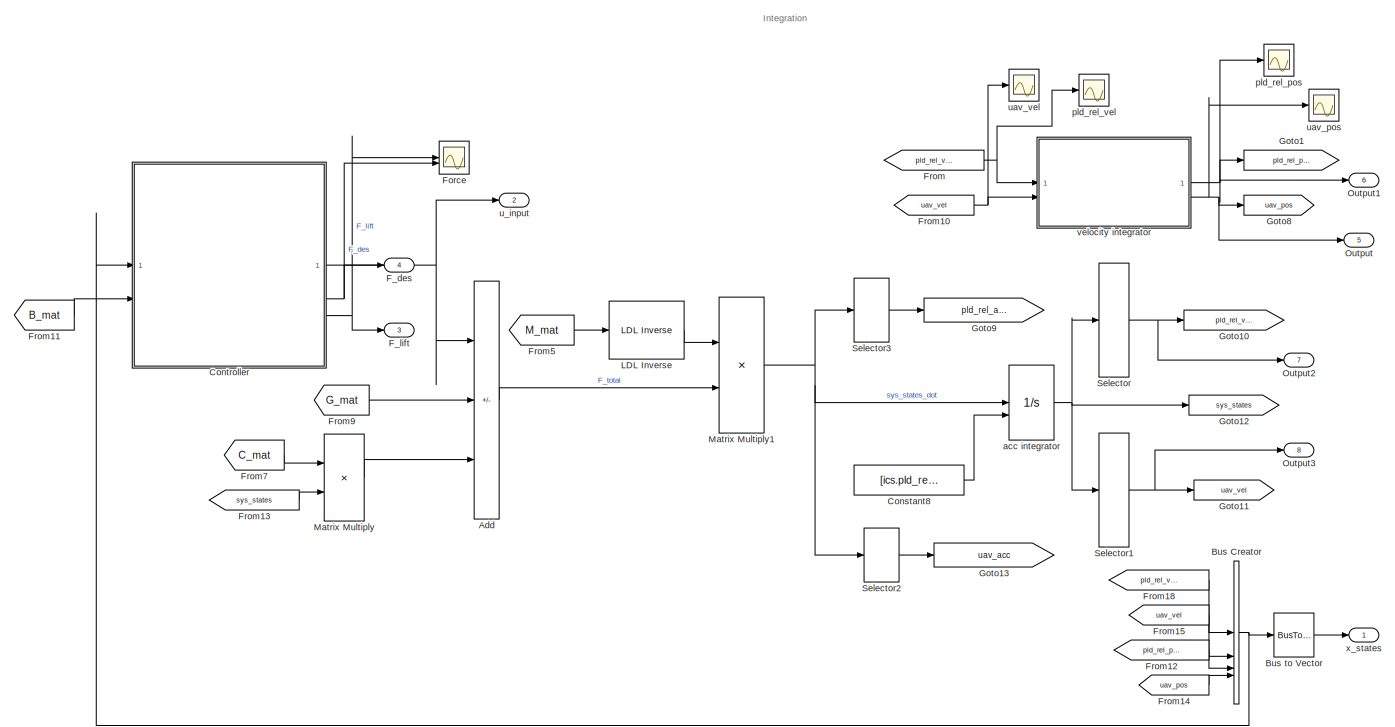
[diagram: root canvas - part 1/3, middle right region]
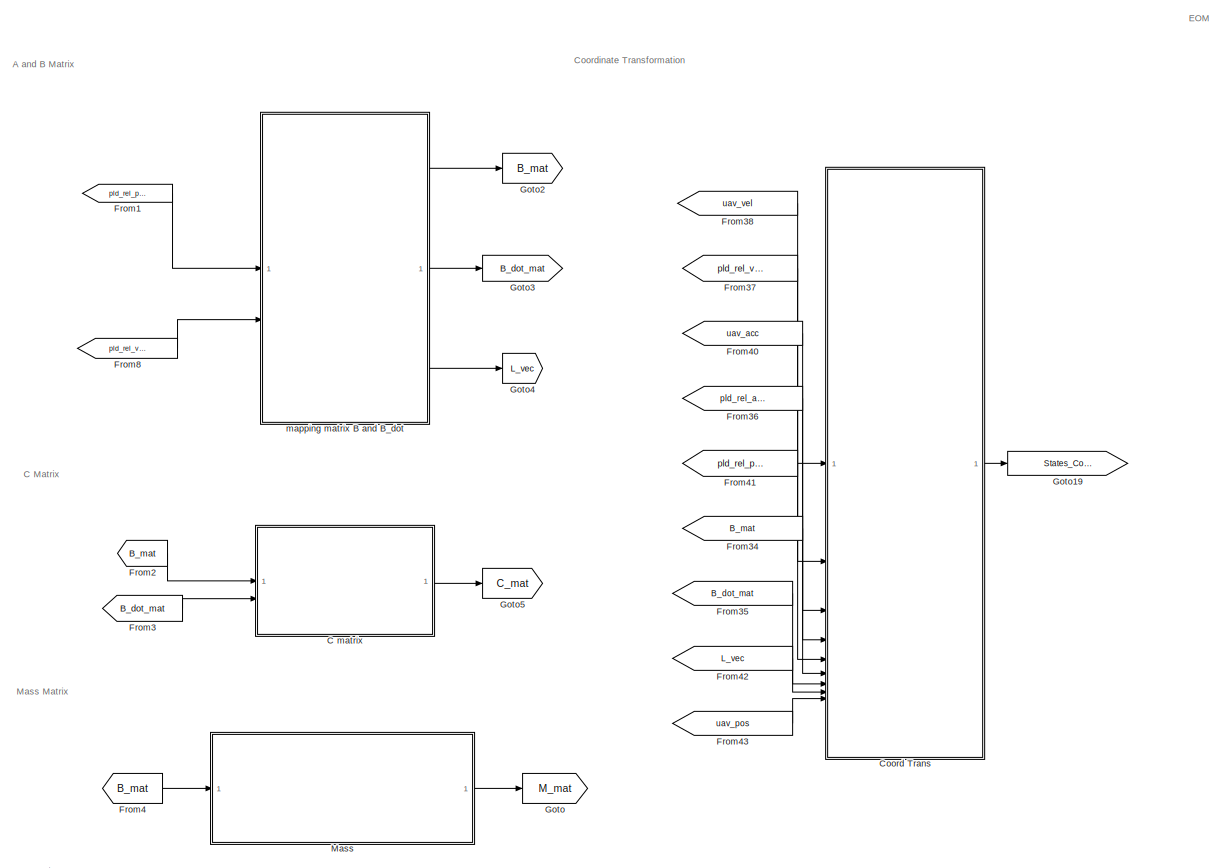
[diagram: root canvas - part 2/3, left side, full height]
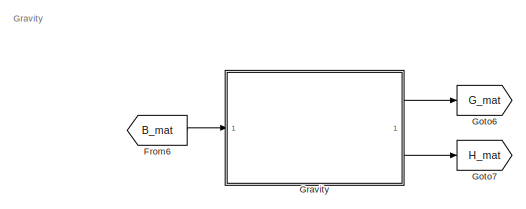
[diagram: root canvas - part 3/3, bottom left region]
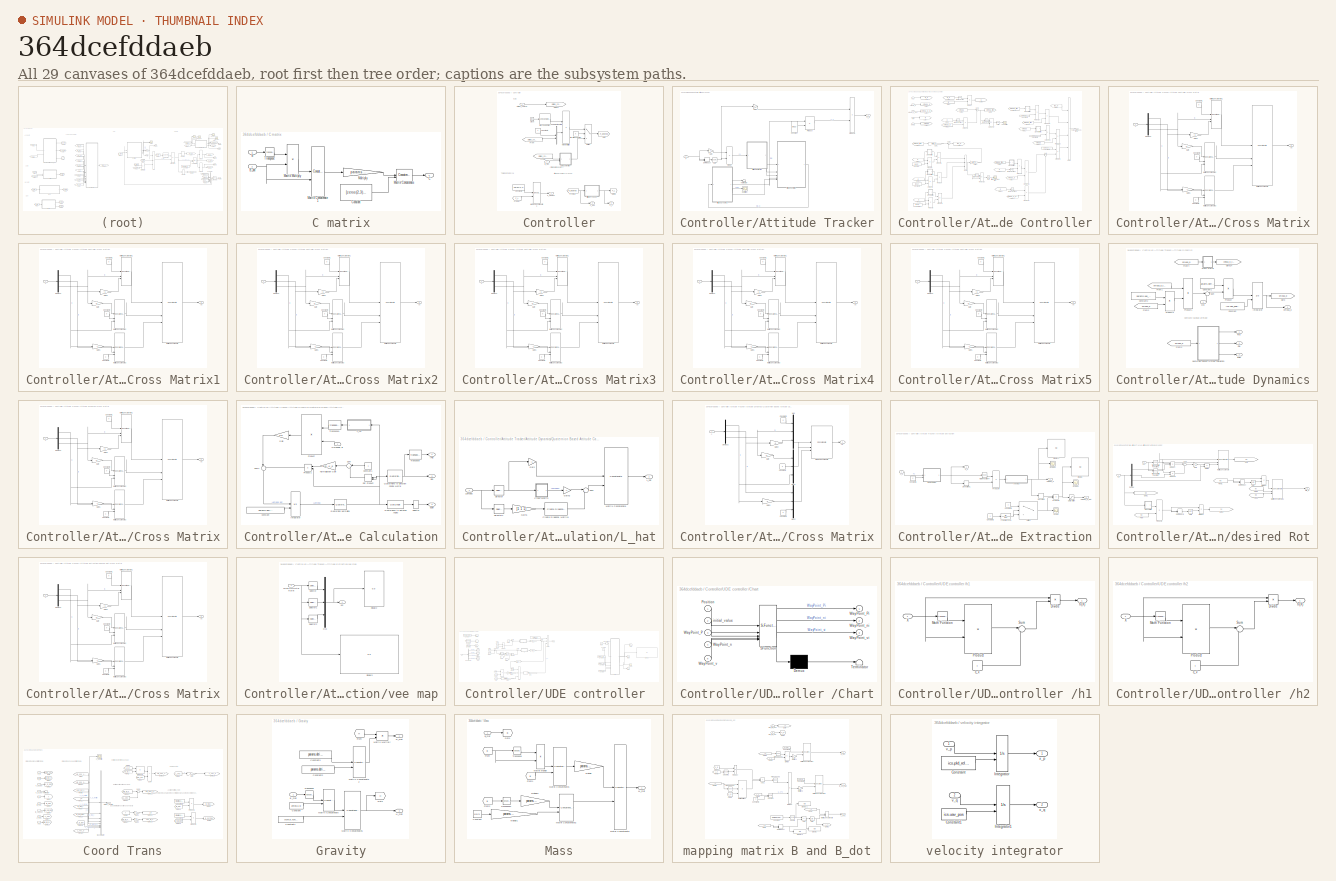
[diagram: thumbnail index - all 29 canvases of the model, root first then tree order]
MODEL slx_364dcefddaeb
KIND model
CONFIG AbsTol = auto
CONFIG EnableMultiTasking = off
CONFIG FixedStep = 0.01
CONFIG MaxStep = auto
CONFIG MinStep = auto
CONFIG RelTol = 1e-3
CONFIG SampleTimeConstraint = Unconstrained
CONFIG SolverName = FixedStepAuto
CONFIG StartTime = 0.0
CONFIG StopFcn = fprintf("Done\n");
CONFIG StopTime = 20
BLOCK [Sum] Add
  IconShape = rectangular
  Inputs = ++-
BLOCK [BusCreator] Bus Creator
  DisplayOption = bar
  InheritFromInputs = on
  Inputs = 4
BLOCK [BusToVector] Bus to Vector
BLOCK [SubSystem] C matrix
BLOCK [Inport] C matrix/B
BLOCK [Inport] C matrix/B_dot
  Port = 2
BLOCK [Outport] C matrix/C
BLOCK [Constant] C matrix/Constant
  Value = [zeros(2,3);zeros(3)]
  VectorParams1D = off
BLOCK [Concatenate] C matrix/Matrix Concatenate
  ConcatenateDimension = 2
  Mode = Multidimensional array
BLOCK [Concatenate] C matrix/Matrix Concatenate1
  Mode = Multidimensional array
BLOCK [Product] C matrix/Matrix Multiply
  Multiplication = Matrix(*)
BLOCK [Gain] C matrix/Multiply
  Gain = params.pld_mass
BLOCK [Math] C matrix/Transpose
  Operator = transpose
BLOCK [Constant] Constant8
  Value = [ics.pld_rel_vel; ics.uav_vel]
  VectorParams1D = off
BLOCK [SubSystem] Controller
BLOCK [SubSystem] Controller/Attitude Tracker
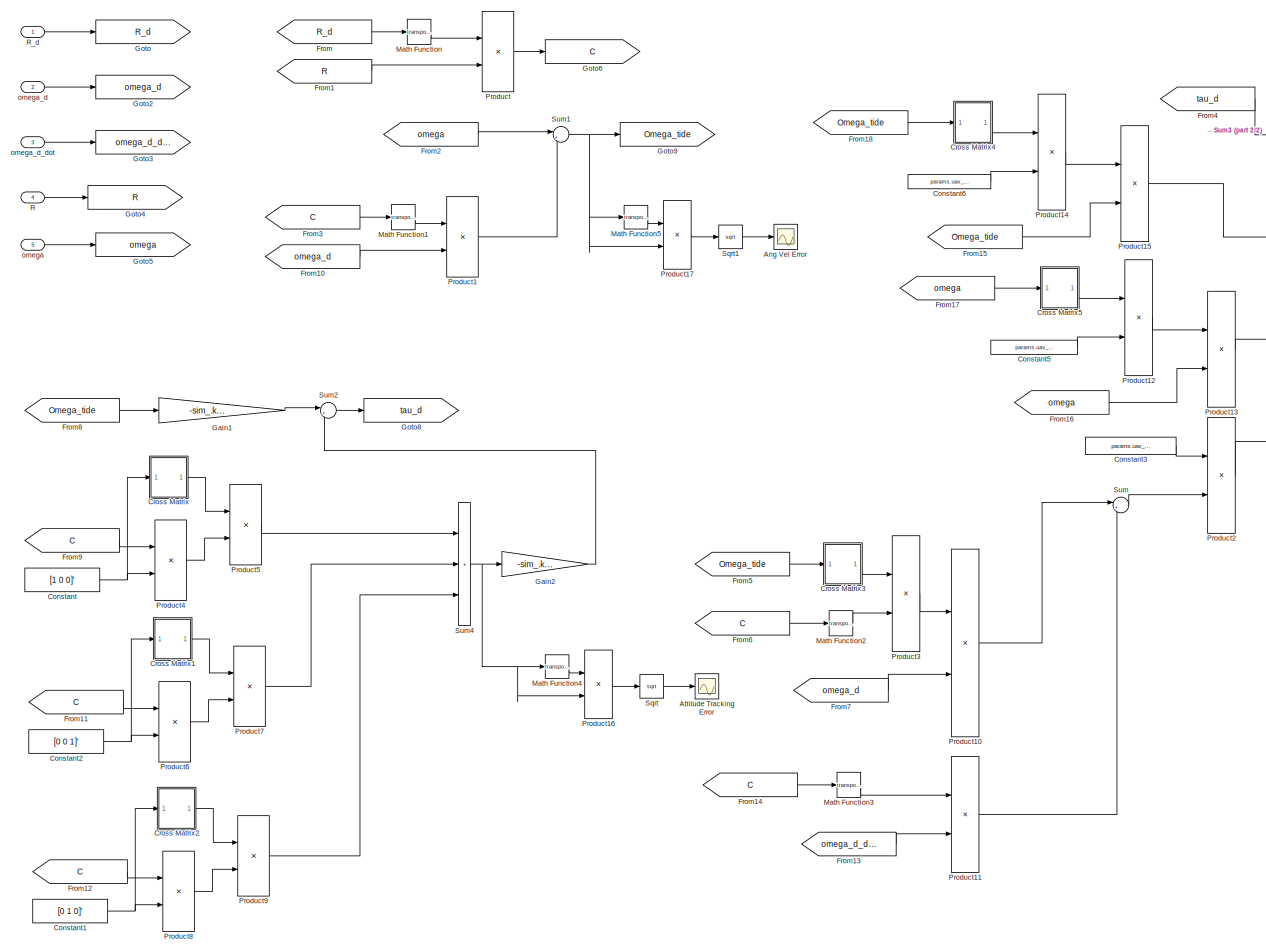
[diagram: Controller/Attitude Tracker/Attitude Controller - part 1/2, most of the canvas]
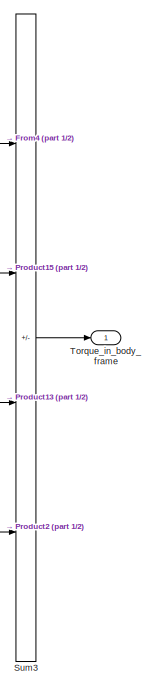
[diagram: Controller/Attitude Tracker/Attitude Controller - part 2/2, top right region]
BLOCK [SubSystem] Controller/Attitude Tracker/Attitude Controller
BLOCK [Scope] Controller/Attitude Tracker/Attitude Controller/Ang Vel Error
  ActiveDisplayYMaximum = 15.93169
  ActiveDisplayYMinimum = -1.77018
  DataLoggingVariableName = ScopeData9
  Floating = off
  GraphicalSettings = {"GraphicalSettings":{"LegacySettings":true,"Style":{"AxesScalingProperties":{"ScaleAxesLimitsAtStop":false},"Style":{"AxesColor":"[0 0 0]","ChannelNames":[""],"ColorOrder":"[1 1 0.0666666666666667;0.0745098039215686 0.623529411764706 1;1 0.411764705882353 0.16078431372549;0.392156862745098 0.831372549019608 0.0745098039215686;0.717647058823529 0.274509803921569 1;0.0588235294117647 1 1;1 0.074509...<+424ch>
  MultipleDisplayCache = [{"MaxYLimMag":15.93169,"MaxYLimReal":15.93169,"MinYLimMag":0,"MinYLimReal":-1.77018,"PlotAsMagnitudePhase":false,"ShowGrid":true,"ShowLegend":false,"Title":"%<SignalLabel>","YLabel":""}]
  NumInputPorts = 1
  WasSavedAsWebScope = on
  WindowPosition = [334 410 560 420]
BLOCK [Scope] Controller/Attitude Tracker/Attitude Controller/Attitude Tracking Error
  ActiveDisplayYMaximum = 1.33442
  ActiveDisplayYMinimum = -0.14827
  DataLoggingVariableName = ScopeData10
  Floating = off
  GraphicalSettings = {"GraphicalSettings":{"LegacySettings":true,"Style":{"Style":{"AxesColor":"[0 0 0]","ChannelNames":[""],"ColorOrder":"[1 1 0.0666666666666667;0.0745098039215686 0.623529411764706 1;1 0.411764705882353 0.16078431372549;0.392156862745098 0.831372549019608 0.0745098039215686;0.717647058823529 0.274509803921569 1;0.0588235294117647 1 1;1 0.0745098039215686 0.650980392156863]","CurrentConfiguration":"e...<+343ch>
  MultipleDisplayCache = [{"MaxYLimMag":1.33442,"MaxYLimReal":1.33442,"MinYLimMag":0,"MinYLimReal":-0.14827,"PlotAsMagnitudePhase":false,"ShowGrid":true,"ShowLegend":false,"Title":"%<SignalLabel>","YLabel":""}]
  NumInputPorts = 1
  WasSavedAsWebScope = on
  WindowPosition = [372 319 560 420]
BLOCK [Constant] Controller/Attitude Tracker/Attitude Controller/Constant
  Value = [1 0 0]'
BLOCK [Constant] Controller/Attitude Tracker/Attitude Controller/Constant1
  Value = [0 1 0]'
BLOCK [Constant] Controller/Attitude Tracker/Attitude Controller/Constant2
  Value = [0 0 1]'
BLOCK [Constant] Controller/Attitude Tracker/Attitude Controller/Constant3
  Value = params.uav_inertia
  VectorParams1D = off
BLOCK [Constant] Controller/Attitude Tracker/Attitude Controller/Constant5
  Value = params.uav_inertia
  VectorParams1D = off
BLOCK [Constant] Controller/Attitude Tracker/Attitude Controller/Constant6
  Value = params.uav_inertia
  VectorParams1D = off
BLOCK [SubSystem] Controller/Attitude Tracker/Attitude Controller/Cross Matrix
BLOCK [Inport] Controller/Attitude Tracker/Attitude Controller/Cross Matrix/A
BLOCK [Outport] Controller/Attitude Tracker/Attitude Controller/Cross Matrix/AX
  VectorParamsAs1DForOutWhenUnconnected = off
BLOCK [Constant] Controller/Attitude Tracker/Attitude Controller/Cross Matrix/Constant1
  Value = 0
  VectorParams1D = off
BLOCK [Constant] Controller/Attitude Tracker/Attitude Controller/Cross Matrix/Constant2
  Value = 0
  VectorParams1D = off
BLOCK [Constant] Controller/Attitude Tracker/Attitude Controller/Cross Matrix/Constant3
  Value = 0
  VectorParams1D = off
BLOCK [Demux] Controller/Attitude Tracker/Attitude Controller/Cross Matrix/Demux2
  Outputs = 3
BLOCK [Gain] Controller/Attitude Tracker/Attitude Controller/Cross Matrix/Gain
  Gain = -1
BLOCK [Gain] Controller/Attitude Tracker/Attitude Controller/Cross Matrix/Gain1
  Gain = -1
BLOCK [Gain] Controller/Attitude Tracker/Attitude Controller/Cross Matrix/Gain2
  Gain = -1
BLOCK [Concatenate] Controller/Attitude Tracker/Attitude Controller/Cross Matrix/Matrix Concatenate
  ConcatenateDimension = 2
  Mode = Multidimensional array
  NumInputs = 3
BLOCK [Concatenate] Controller/Attitude Tracker/Attitude Controller/Cross Matrix/Matrix Concatenate1
  Mode = Multidimensional array
  NumInputs = 3
BLOCK [Concatenate] Controller/Attitude Tracker/Attitude Controller/Cross Matrix/Matrix Concatenate2
  Mode = Multidimensional array
  NumInputs = 3
BLOCK [Concatenate] Controller/Attitude Tracker/Attitude Controller/Cross Matrix/Matrix Concatenate3
  Mode = Multidimensional array
  NumInputs = 3
BLOCK [SubSystem] Controller/Attitude Tracker/Attitude Controller/Cross Matrix1
BLOCK [Inport] Controller/Attitude Tracker/Attitude Controller/Cross Matrix1/A
BLOCK [Outport] Controller/Attitude Tracker/Attitude Controller/Cross Matrix1/AX
  VectorParamsAs1DForOutWhenUnconnected = off
BLOCK [Constant] Controller/Attitude Tracker/Attitude Controller/Cross Matrix1/Constant1
  Value = 0
  VectorParams1D = off
BLOCK [Constant] Controller/Attitude Tracker/Attitude Controller/Cross Matrix1/Constant2
  Value = 0
  VectorParams1D = off
BLOCK [Constant] Controller/Attitude Tracker/Attitude Controller/Cross Matrix1/Constant3
  Value = 0
  VectorParams1D = off
BLOCK [Demux] Controller/Attitude Tracker/Attitude Controller/Cross Matrix1/Demux2
  Outputs = 3
BLOCK [Gain] Controller/Attitude Tracker/Attitude Controller/Cross Matrix1/Gain
  Gain = -1
BLOCK [Gain] Controller/Attitude Tracker/Attitude Controller/Cross Matrix1/Gain1
  Gain = -1
BLOCK [Gain] Controller/Attitude Tracker/Attitude Controller/Cross Matrix1/Gain2
  Gain = -1
BLOCK [Concatenate] Controller/Attitude Tracker/Attitude Controller/Cross Matrix1/Matrix Concatenate
  ConcatenateDimension = 2
  Mode = Multidimensional array
  NumInputs = 3
BLOCK [Concatenate] Controller/Attitude Tracker/Attitude Controller/Cross Matrix1/Matrix Concatenate1
  Mode = Multidimensional array
  NumInputs = 3
BLOCK [Concatenate] Controller/Attitude Tracker/Attitude Controller/Cross Matrix1/Matrix Concatenate2
  Mode = Multidimensional array
  NumInputs = 3
BLOCK [Concatenate] Controller/Attitude Tracker/Attitude Controller/Cross Matrix1/Matrix Concatenate3
  Mode = Multidimensional array
  NumInputs = 3
BLOCK [SubSystem] Controller/Attitude Tracker/Attitude Controller/Cross Matrix2
BLOCK [Inport] Controller/Attitude Tracker/Attitude Controller/Cross Matrix2/A
BLOCK [Outport] Controller/Attitude Tracker/Attitude Controller/Cross Matrix2/AX
  VectorParamsAs1DForOutWhenUnconnected = off
BLOCK [Constant] Controller/Attitude Tracker/Attitude Controller/Cross Matrix2/Constant1
  Value = 0
  VectorParams1D = off
BLOCK [Constant] Controller/Attitude Tracker/Attitude Controller/Cross Matrix2/Constant2
  Value = 0
  VectorParams1D = off
BLOCK [Constant] Controller/Attitude Tracker/Attitude Controller/Cross Matrix2/Constant3
  Value = 0
  VectorParams1D = off
BLOCK [Demux] Controller/Attitude Tracker/Attitude Controller/Cross Matrix2/Demux2
  Outputs = 3
BLOCK [Gain] Controller/Attitude Tracker/Attitude Controller/Cross Matrix2/Gain
  Gain = -1
BLOCK [Gain] Controller/Attitude Tracker/Attitude Controller/Cross Matrix2/Gain1
  Gain = -1
BLOCK [Gain] Controller/Attitude Tracker/Attitude Controller/Cross Matrix2/Gain2
  Gain = -1
BLOCK [Concatenate] Controller/Attitude Tracker/Attitude Controller/Cross Matrix2/Matrix Concatenate
  ConcatenateDimension = 2
  Mode = Multidimensional array
  NumInputs = 3
BLOCK [Concatenate] Controller/Attitude Tracker/Attitude Controller/Cross Matrix2/Matrix Concatenate1
  Mode = Multidimensional array
  NumInputs = 3
BLOCK [Concatenate] Controller/Attitude Tracker/Attitude Controller/Cross Matrix2/Matrix Concatenate2
  Mode = Multidimensional array
  NumInputs = 3
BLOCK [Concatenate] Controller/Attitude Tracker/Attitude Controller/Cross Matrix2/Matrix Concatenate3
  Mode = Multidimensional array
  NumInputs = 3
BLOCK [SubSystem] Controller/Attitude Tracker/Attitude Controller/Cross Matrix3
BLOCK [Inport] Controller/Attitude Tracker/Attitude Controller/Cross Matrix3/A
BLOCK [Outport] Controller/Attitude Tracker/Attitude Controller/Cross Matrix3/AX
  VectorParamsAs1DForOutWhenUnconnected = off
BLOCK [Constant] Controller/Attitude Tracker/Attitude Controller/Cross Matrix3/Constant1
  Value = 0
  VectorParams1D = off
BLOCK [Constant] Controller/Attitude Tracker/Attitude Controller/Cross Matrix3/Constant2
  Value = 0
  VectorParams1D = off
BLOCK [Constant] Controller/Attitude Tracker/Attitude Controller/Cross Matrix3/Constant3
  Value = 0
  VectorParams1D = off
BLOCK [Demux] Controller/Attitude Tracker/Attitude Controller/Cross Matrix3/Demux2
  Outputs = 3
BLOCK [Gain] Controller/Attitude Tracker/Attitude Controller/Cross Matrix3/Gain
  Gain = -1
BLOCK [Gain] Controller/Attitude Tracker/Attitude Controller/Cross Matrix3/Gain1
  Gain = -1
BLOCK [Gain] Controller/Attitude Tracker/Attitude Controller/Cross Matrix3/Gain2
  Gain = -1
BLOCK [Concatenate] Controller/Attitude Tracker/Attitude Controller/Cross Matrix3/Matrix Concatenate
  ConcatenateDimension = 2
  Mode = Multidimensional array
  NumInputs = 3
BLOCK [Concatenate] Controller/Attitude Tracker/Attitude Controller/Cross Matrix3/Matrix Concatenate1
  Mode = Multidimensional array
  NumInputs = 3
BLOCK [Concatenate] Controller/Attitude Tracker/Attitude Controller/Cross Matrix3/Matrix Concatenate2
  Mode = Multidimensional array
  NumInputs = 3
BLOCK [Concatenate] Controller/Attitude Tracker/Attitude Controller/Cross Matrix3/Matrix Concatenate3
  Mode = Multidimensional array
  NumInputs = 3
BLOCK [SubSystem] Controller/Attitude Tracker/Attitude Controller/Cross Matrix4
  NameLocation = top
BLOCK [Inport] Controller/Attitude Tracker/Attitude Controller/Cross Matrix4/A
BLOCK [Outport] Controller/Attitude Tracker/Attitude Controller/Cross Matrix4/AX
  VectorParamsAs1DForOutWhenUnconnected = off
BLOCK [Constant] Controller/Attitude Tracker/Attitude Controller/Cross Matrix4/Constant1
  Value = 0
  VectorParams1D = off
BLOCK [Constant] Controller/Attitude Tracker/Attitude Controller/Cross Matrix4/Constant2
  Value = 0
  VectorParams1D = off
BLOCK [Constant] Controller/Attitude Tracker/Attitude Controller/Cross Matrix4/Constant3
  Value = 0
  VectorParams1D = off
BLOCK [Demux] Controller/Attitude Tracker/Attitude Controller/Cross Matrix4/Demux2
  Outputs = 3
BLOCK [Gain] Controller/Attitude Tracker/Attitude Controller/Cross Matrix4/Gain
  Gain = -1
BLOCK [Gain] Controller/Attitude Tracker/Attitude Controller/Cross Matrix4/Gain1
  Gain = -1
BLOCK [Gain] Controller/Attitude Tracker/Attitude Controller/Cross Matrix4/Gain2
  Gain = -1
BLOCK [Concatenate] Controller/Attitude Tracker/Attitude Controller/Cross Matrix4/Matrix Concatenate
  ConcatenateDimension = 2
  Mode = Multidimensional array
  NumInputs = 3
BLOCK [Concatenate] Controller/Attitude Tracker/Attitude Controller/Cross Matrix4/Matrix Concatenate1
  Mode = Multidimensional array
  NumInputs = 3
BLOCK [Concatenate] Controller/Attitude Tracker/Attitude Controller/Cross Matrix4/Matrix Concatenate2
  Mode = Multidimensional array
  NumInputs = 3
BLOCK [Concatenate] Controller/Attitude Tracker/Attitude Controller/Cross Matrix4/Matrix Concatenate3
  Mode = Multidimensional array
  NumInputs = 3
BLOCK [SubSystem] Controller/Attitude Tracker/Attitude Controller/Cross Matrix5
  NameLocation = top
BLOCK [Inport] Controller/Attitude Tracker/Attitude Controller/Cross Matrix5/A
BLOCK [Outport] Controller/Attitude Tracker/Attitude Controller/Cross Matrix5/AX
  VectorParamsAs1DForOutWhenUnconnected = off
BLOCK [Constant] Controller/Attitude Tracker/Attitude Controller/Cross Matrix5/Constant1
  Value = 0
  VectorParams1D = off
BLOCK [Constant] Controller/Attitude Tracker/Attitude Controller/Cross Matrix5/Constant2
  Value = 0
  VectorParams1D = off
BLOCK [Constant] Controller/Attitude Tracker/Attitude Controller/Cross Matrix5/Constant3
  Value = 0
  VectorParams1D = off
BLOCK [Demux] Controller/Attitude Tracker/Attitude Controller/Cross Matrix5/Demux2
  Outputs = 3
BLOCK [Gain] Controller/Attitude Tracker/Attitude Controller/Cross Matrix5/Gain
  Gain = -1
BLOCK [Gain] Controller/Attitude Tracker/Attitude Controller/Cross Matrix5/Gain1
  Gain = -1
BLOCK [Gain] Controller/Attitude Tracker/Attitude Controller/Cross Matrix5/Gain2
  Gain = -1
BLOCK [Concatenate] Controller/Attitude Tracker/Attitude Controller/Cross Matrix5/Matrix Concatenate
  ConcatenateDimension = 2
  Mode = Multidimensional array
  NumInputs = 3
BLOCK [Concatenate] Controller/Attitude Tracker/Attitude Controller/Cross Matrix5/Matrix Concatenate1
  Mode = Multidimensional array
  NumInputs = 3
BLOCK [Concatenate] Controller/Attitude Tracker/Attitude Controller/Cross Matrix5/Matrix Concatenate2
  Mode = Multidimensional array
  NumInputs = 3
BLOCK [Concatenate] Controller/Attitude Tracker/Attitude Controller/Cross Matrix5/Matrix Concatenate3
  Mode = Multidimensional array
  NumInputs = 3
BLOCK [From] Controller/Attitude Tracker/Attitude Controller/From
  GotoTag = R_d
BLOCK [From] Controller/Attitude Tracker/Attitude Controller/From1
  GotoTag = R
BLOCK [From] Controller/Attitude Tracker/Attitude Controller/From10
  GotoTag = omega_d
BLOCK [From] Controller/Attitude Tracker/Attitude Controller/From11
  GotoTag = C
BLOCK [From] Controller/Attitude Tracker/Attitude Controller/From12
  GotoTag = C
BLOCK [From] Controller/Attitude Tracker/Attitude Controller/From13
  GotoTag = omega_d_dot
BLOCK [From] Controller/Attitude Tracker/Attitude Controller/From14
  GotoTag = C
BLOCK [From] Controller/Attitude Tracker/Attitude Controller/From15
  GotoTag = Omega_tide
BLOCK [From] Controller/Attitude Tracker/Attitude Controller/From16
  GotoTag = omega
BLOCK [From] Controller/Attitude Tracker/Attitude Controller/From17
  GotoTag = omega
BLOCK [From] Controller/Attitude Tracker/Attitude Controller/From18
  GotoTag = Omega_tide
BLOCK [From] Controller/Attitude Tracker/Attitude Controller/From2
  GotoTag = omega
BLOCK [From] Controller/Attitude Tracker/Attitude Controller/From3
  GotoTag = C
BLOCK [From] Controller/Attitude Tracker/Attitude Controller/From4
  GotoTag = tau_d
BLOCK [From] Controller/Attitude Tracker/Attitude Controller/From5
  GotoTag = Omega_tide
BLOCK [From] Controller/Attitude Tracker/Attitude Controller/From6
  GotoTag = C
BLOCK [From] Controller/Attitude Tracker/Attitude Controller/From7
  GotoTag = omega_d
BLOCK [From] Controller/Attitude Tracker/Attitude Controller/From8
  GotoTag = Omega_tide
BLOCK [From] Controller/Attitude Tracker/Attitude Controller/From9
  GotoTag = C
BLOCK [Gain] Controller/Attitude Tracker/Attitude Controller/Gain1
  Gain = -sim_.k_ang_vel
  Multiplication = Matrix(K*u)
BLOCK [Gain] Controller/Attitude Tracker/Attitude Controller/Gain2
  Gain = -sim_.k_att
  Multiplication = Matrix(K*u)
BLOCK [Goto] Controller/Attitude Tracker/Attitude Controller/Goto
  GotoTag = R_d
BLOCK [Goto] Controller/Attitude Tracker/Attitude Controller/Goto2
  GotoTag = omega_d
BLOCK [Goto] Controller/Attitude Tracker/Attitude Controller/Goto3
  GotoTag = omega_d_dot
BLOCK [Goto] Controller/Attitude Tracker/Attitude Controller/Goto4
  GotoTag = R
BLOCK [Goto] Controller/Attitude Tracker/Attitude Controller/Goto5
  GotoTag = omega
BLOCK [Goto] Controller/Attitude Tracker/Attitude Controller/Goto6
  GotoTag = C
BLOCK [Goto] Controller/Attitude Tracker/Attitude Controller/Goto8
  GotoTag = tau_d
BLOCK [Goto] Controller/Attitude Tracker/Attitude Controller/Goto9
  GotoTag = Omega_tide
BLOCK [Math] Controller/Attitude Tracker/Attitude Controller/Math Function
  Operator = transpose
  SignedPower = on
BLOCK [Math] Controller/Attitude Tracker/Attitude Controller/Math Function1
  Operator = transpose
  SignedPower = on
BLOCK [Math] Controller/Attitude Tracker/Attitude Controller/Math Function2
  Operator = transpose
  SignedPower = on
BLOCK [Math] Controller/Attitude Tracker/Attitude Controller/Math Function3
  Operator = transpose
  SignedPower = on
BLOCK [Math] Controller/Attitude Tracker/Attitude Controller/Math Function4
  Operator = transpose
  SignedPower = on
BLOCK [Math] Controller/Attitude Tracker/Attitude Controller/Math Function5
  Operator = transpose
  SignedPower = on
BLOCK [Product] Controller/Attitude Tracker/Attitude Controller/Product
  Multiplication = Matrix(*)
BLOCK [Product] Controller/Attitude Tracker/Attitude Controller/Product1
  Multiplication = Matrix(*)
BLOCK [Product] Controller/Attitude Tracker/Attitude Controller/Product10
  Multiplication = Matrix(*)
BLOCK [Product] Controller/Attitude Tracker/Attitude Controller/Product11
  Multiplication = Matrix(*)
BLOCK [Product] Controller/Attitude Tracker/Attitude Controller/Product12
  Multiplication = Matrix(*)
BLOCK [Product] Controller/Attitude Tracker/Attitude Controller/Product13
  Multiplication = Matrix(*)
BLOCK [Product] Controller/Attitude Tracker/Attitude Controller/Product14
  Multiplication = Matrix(*)
BLOCK [Product] Controller/Attitude Tracker/Attitude Controller/Product15
  Multiplication = Matrix(*)
BLOCK [Product] Controller/Attitude Tracker/Attitude Controller/Product16
  Multiplication = Matrix(*)
BLOCK [Product] Controller/Attitude Tracker/Attitude Controller/Product17
  Multiplication = Matrix(*)
BLOCK [Product] Controller/Attitude Tracker/Attitude Controller/Product2
  Multiplication = Matrix(*)
BLOCK [Product] Controller/Attitude Tracker/Attitude Controller/Product3
  Multiplication = Matrix(*)
BLOCK [Product] Controller/Attitude Tracker/Attitude Controller/Product4
  Multiplication = Matrix(*)
BLOCK [Product] Controller/Attitude Tracker/Attitude Controller/Product5
  Multiplication = Matrix(*)
BLOCK [Product] Controller/Attitude Tracker/Attitude Controller/Product6
  Multiplication = Matrix(*)
BLOCK [Product] Controller/Attitude Tracker/Attitude Controller/Product7
  Multiplication = Matrix(*)
BLOCK [Product] Controller/Attitude Tracker/Attitude Controller/Product8
  Multiplication = Matrix(*)
BLOCK [Product] Controller/Attitude Tracker/Attitude Controller/Product9
  Multiplication = Matrix(*)
BLOCK [Inport] Controller/Attitude Tracker/Attitude Controller/R
  Port = 4
BLOCK [Inport] Controller/Attitude Tracker/Attitude Controller/R_d
BLOCK [Sqrt] Controller/Attitude Tracker/Attitude Controller/Sqrt
BLOCK [Sqrt] Controller/Attitude Tracker/Attitude Controller/Sqrt1
BLOCK [Sum] Controller/Attitude Tracker/Attitude Controller/Sum
  Inputs = |+-
BLOCK [Sum] Controller/Attitude Tracker/Attitude Controller/Sum1
  Inputs = |+-
BLOCK [Sum] Controller/Attitude Tracker/Attitude Controller/Sum2
  Inputs = |++
BLOCK [Sum] Controller/Attitude Tracker/Attitude Controller/Sum3
  IconShape = rectangular
  Inputs = +-+-
BLOCK [Sum] Controller/Attitude Tracker/Attitude Controller/Sum4
  IconShape = rectangular
  Inputs = +++
BLOCK [Outport] Controller/Attitude Tracker/Attitude Controller/Torque_in_body_frame
  VectorParamsAs1DForOutWhenUnconnected = off
BLOCK [Inport] Controller/Attitude Tracker/Attitude Controller/omega
  Port = 5
BLOCK [Inport] Controller/Attitude Tracker/Attitude Controller/omega_d
  Port = 2
BLOCK [Inport] Controller/Attitude Tracker/Attitude Controller/omega_d_dot
  Port = 3
BLOCK [SubSystem] Controller/Attitude Tracker/Attitude Dynamics
BLOCK [Constant] Controller/Attitude Tracker/Attitude Dynamics/Constant
  Value = ics.uav_ang_vel
  VectorParams1D = off
BLOCK [Constant] Controller/Attitude Tracker/Attitude Dynamics/Constant1
  Value = params.derived.inv_uav_inertia
  VectorParams1D = off
BLOCK [Constant] Controller/Attitude Tracker/Attitude Dynamics/Constant2
  Value = params.uav_inertia
  VectorParams1D = off
BLOCK [SubSystem] Controller/Attitude Tracker/Attitude Dynamics/Cross Matrix
BLOCK [Inport] Controller/Attitude Tracker/Attitude Dynamics/Cross Matrix/A
BLOCK [Outport] Controller/Attitude Tracker/Attitude Dynamics/Cross Matrix/AX
  VectorParamsAs1DForOutWhenUnconnected = off
BLOCK [Constant] Controller/Attitude Tracker/Attitude Dynamics/Cross Matrix/Constant1
  Value = 0
  VectorParams1D = off
BLOCK [Constant] Controller/Attitude Tracker/Attitude Dynamics/Cross Matrix/Constant2
  Value = 0
  VectorParams1D = off
BLOCK [Constant] Controller/Attitude Tracker/Attitude Dynamics/Cross Matrix/Constant3
  Value = 0
  VectorParams1D = off
BLOCK [Demux] Controller/Attitude Tracker/Attitude Dynamics/Cross Matrix/Demux2
  Outputs = 3
BLOCK [Gain] Controller/Attitude Tracker/Attitude Dynamics/Cross Matrix/Gain
  Gain = -1
BLOCK [Gain] Controller/Attitude Tracker/Attitude Dynamics/Cross Matrix/Gain1
  Gain = -1
BLOCK [Gain] Controller/Attitude Tracker/Attitude Dynamics/Cross Matrix/Gain2
  Gain = -1
BLOCK [Concatenate] Controller/Attitude Tracker/Attitude Dynamics/Cross Matrix/Matrix Concatenate
  ConcatenateDimension = 2
  Mode = Multidimensional array
  NumInputs = 3
BLOCK [Concatenate] Controller/Attitude Tracker/Attitude Dynamics/Cross Matrix/Matrix Concatenate1
  Mode = Multidimensional array
  NumInputs = 3
BLOCK [Concatenate] Controller/Attitude Tracker/Attitude Dynamics/Cross Matrix/Matrix Concatenate2
  Mode = Multidimensional array
  NumInputs = 3
BLOCK [Concatenate] Controller/Attitude Tracker/Attitude Dynamics/Cross Matrix/Matrix Concatenate3
  Mode = Multidimensional array
  NumInputs = 3
BLOCK [Outport] Controller/Attitude Tracker/Attitude Dynamics/Euler
  Port = 3
  VectorParamsAs1DForOutWhenUnconnected = off
BLOCK [From] Controller/Attitude Tracker/Attitude Dynamics/From1
  GotoTag = omega_b_cross
BLOCK [From] Controller/Attitude Tracker/Attitude Dynamics/From2
  GotoTag = omega_b
BLOCK [From] Controller/Attitude Tracker/Attitude Dynamics/From3
  GotoTag = omega_b
BLOCK [From] Controller/Attitude Tracker/Attitude Dynamics/From4
  GotoTag = omega_b
BLOCK [Goto] Controller/Attitude Tracker/Attitude Dynamics/Goto
  GotoTag = omega_b
BLOCK [Goto] Controller/Attitude Tracker/Attitude Dynamics/Goto14
  GotoTag = omega_b_cross
BLOCK [Integrator] Controller/Attitude Tracker/Attitude Dynamics/Integrator
  InitialConditionSource = external
BLOCK [Inport] Controller/Attitude Tracker/Attitude Dynamics/MB
BLOCK [Product] Controller/Attitude Tracker/Attitude Dynamics/Product
  Multiplication = Matrix(*)
BLOCK [Product] Controller/Attitude Tracker/Attitude Dynamics/Product1
  Multiplication = Matrix(*)
BLOCK [Product] Controller/Attitude Tracker/Attitude Dynamics/Product2
  Multiplication = Matrix(*)
BLOCK [SubSystem] Controller/Attitude Tracker/Attitude Dynamics/Quaternion Based Attitude Calculation
BLOCK [Outport] Controller/Attitude Tracker/Attitude Dynamics/Quaternion Based Attitude Calculation/BRI
  Port = 2
  VectorParamsAs1DForOutWhenUnconnected = off
BLOCK [Constant] Controller/Attitude Tracker/Attitude Dynamics/Quaternion Based Attitude Calculation/Constant
  Value = params.derived.uav_att_quat_0
BLOCK [Constant] Controller/Attitude Tracker/Attitude Dynamics/Quaternion Based Attitude Calculation/Constant1
  NameLocation = top
BLOCK [DotProduct] Controller/Attitude Tracker/Attitude Dynamics/Quaternion Based Attitude Calculation/Dot Product
  InputSameDT = off
  NameLocation = top
  OutDataTypeStr = Inherit: Inherit via internal rule
BLOCK [Outport] Controller/Attitude Tracker/Attitude Dynamics/Quaternion Based Attitude Calculation/Euler
  Port = 3
  VectorParamsAs1DForOutWhenUnconnected = off
BLOCK [Gain] Controller/Attitude Tracker/Attitude Dynamics/Quaternion Based Attitude Calculation/Gain
  Gain = 0.5
  NameLocation = top
BLOCK [Outport] Controller/Attitude Tracker/Attitude Dynamics/Quaternion Based Attitude Calculation/IRB
  VectorParamsAs1DForOutWhenUnconnected = off
BLOCK [Integrator] Controller/Attitude Tracker/Attitude Dynamics/Quaternion Based Attitude Calculation/Integrator
  InitialConditionSource = external
BLOCK [SubSystem] Controller/Attitude Tracker/Attitude Dynamics/Quaternion Based Attitude Calculation/L_hat
  NameLocation = top
BLOCK [Reference] Controller/Attitude Tracker/Attitude Dynamics/Quaternion Based Attitude Calculation/L_hat/Create Diagonal Matrix1  REF=matrix_library/Create Diagonal
Matrix
  SourceBlock = matrix_library/Create Diagonal\nMatrix
  SourceType = Create Diagonal Matrix
BLOCK [SubSystem] Controller/Attitude Tracker/Attitude Dynamics/Quaternion Based Attitude Calculation/L_hat/Cross Matrix
BLOCK [Inport] Controller/Attitude Tracker/Attitude Dynamics/Quaternion Based Attitude Calculation/L_hat/Cross Matrix/A
BLOCK [Outport] Controller/Attitude Tracker/Attitude Dynamics/Quaternion Based Attitude Calculation/L_hat/Cross Matrix/AX
  VectorParamsAs1DForOutWhenUnconnected = off
BLOCK [Constant] Controller/Attitude Tracker/Attitude Dynamics/Quaternion Based Attitude Calculation/L_hat/Cross Matrix/Constant1
  Value = 0
BLOCK [Constant] Controller/Attitude Tracker/Attitude Dynamics/Quaternion Based Attitude Calculation/L_hat/Cross Matrix/Constant2
  Value = 0
BLOCK [Constant] Controller/Attitude Tracker/Attitude Dynamics/Quaternion Based Attitude Calculation/L_hat/Cross Matrix/Constant3
  Value = 0
BLOCK [Demux] Controller/Attitude Tracker/Attitude Dynamics/Quaternion Based Attitude Calculation/L_hat/Cross Matrix/Demux2
  Outputs = 3
BLOCK [Gain] Controller/Attitude Tracker/Attitude Dynamics/Quaternion Based Attitude Calculation/L_hat/Cross Matrix/Gain
  Gain = -1
BLOCK [Gain] Controller/Attitude Tracker/Attitude Dynamics/Quaternion Based Attitude Calculation/L_hat/Cross Matrix/Gain1
  Gain = -1
BLOCK [Gain] Controller/Attitude Tracker/Attitude Dynamics/Quaternion Based Attitude Calculation/L_hat/Cross Matrix/Gain2
  Gain = -1
BLOCK [Concatenate] Controller/Attitude Tracker/Attitude Dynamics/Quaternion Based Attitude Calculation/L_hat/Cross Matrix/Matrix Concatenate
  ConcatenateDimension = 2
  Mode = Multidimensional array
  NumInputs = 3
BLOCK [Mux] Controller/Attitude Tracker/Attitude Dynamics/Quaternion Based Attitude Calculation/L_hat/Cross Matrix/Mux
  DisplayOption = bar
  Inputs = 3
BLOCK [Mux] Controller/Attitude Tracker/Attitude Dynamics/Quaternion Based Attitude Calculation/L_hat/Cross Matrix/Mux1
  DisplayOption = bar
  Inputs = 3
BLOCK [Mux] Controller/Attitude Tracker/Attitude Dynamics/Quaternion Based Attitude Calculation/L_hat/Cross Matrix/Mux2
  DisplayOption = bar
  Inputs = 3
BLOCK [Gain] Controller/Attitude Tracker/Attitude Dynamics/Quaternion Based Attitude Calculation/L_hat/Gain
  Gain = -1
BLOCK [Gain] Controller/Attitude Tracker/Attitude Dynamics/Quaternion Based Attitude Calculation/L_hat/Gain1
  Gain = [1 1 1]
BLOCK [Gain] Controller/Attitude Tracker/Attitude Dynamics/Quaternion Based Attitude Calculation/L_hat/Gain2
  Gain = -1
BLOCK [Outport] Controller/Attitude Tracker/Attitude Dynamics/Quaternion Based Attitude Calculation/L_hat/L_hat
  VectorParamsAs1DForOutWhenUnconnected = off
BLOCK [Inport] Controller/Attitude Tracker/Attitude Dynamics/Quaternion Based Attitude Calculation/L_hat/Lambda
BLOCK [Concatenate] Controller/Attitude Tracker/Attitude Dynamics/Quaternion Based Attitude Calculation/L_hat/Matrix Concatenate
  ConcatenateDimension = 2
  Mode = Multidimensional array
BLOCK [Selector] Controller/Attitude Tracker/Attitude Dynamics/Quaternion Based Attitude Calculation/L_hat/Selector
  IndexOptions = Index vector (dialog)
  Indices = [2 3 4]
  InputPortWidth = 4
  OutputSizes = 1
BLOCK [Selector] Controller/Attitude Tracker/Attitude Dynamics/Quaternion Based Attitude Calculation/L_hat/Selector1
  IndexOptions = Index vector (dialog)
  Indices = [1]
  InputPortWidth = 4
  OutputSizes = 1
BLOCK [Sum] Controller/Attitude Tracker/Attitude Dynamics/Quaternion Based Attitude Calculation/L_hat/Sum
  Inputs = |++
BLOCK [Gain] Controller/Attitude Tracker/Attitude Dynamics/Quaternion Based Attitude Calculation/Normalization Gain
  Gain = sim_.K_q
  NameLocation = top
BLOCK [Inport] Controller/Attitude Tracker/Attitude Dynamics/Quaternion Based Attitude Calculation/OmegaBI,B
  NameLocation = top
BLOCK [Product] Controller/Attitude Tracker/Attitude Dynamics/Quaternion Based Attitude Calculation/Product
  Multiplication = Matrix(*)
  NameLocation = top
  RndMeth = Zero
BLOCK [Product] Controller/Attitude Tracker/Attitude Dynamics/Quaternion Based Attitude Calculation/Product1
  NameLocation = top
  RndMeth = Zero
BLOCK [Reference] Controller/Attitude Tracker/Attitude Dynamics/Quaternion Based Attitude Calculation/Quaternion Normalize  REF=sharedutil/Quaternion
Normalize
  SourceBlock = sharedutil/Quaternion\nNormalize
  SourceType = Quaternion Normalize
BLOCK [Reference] Controller/Attitude Tracker/Attitude Dynamics/Quaternion Based Attitude Calculation/Quaternions to Direction Cosine Matrix  REF=sharedtransform/Quaternions to 
Direction Cosine Matrix
  SourceBlock = sharedtransform/Quaternions to \nDirection Cosine Matrix
  SourceType = Quaternion2DCM
BLOCK [Quat2Angle] Controller/Attitude Tracker/Attitude Dynamics/Quaternion Based Attitude Calculation/Quaternions to Rotation Angles
  AttributesFormatString = Rotation Order: %<rotationOrder>
BLOCK [Selector] Controller/Attitude Tracker/Attitude Dynamics/Quaternion Based Attitude Calculation/Selector
  IndexOptions = Index vector (dialog)
  Indices = [3 2 1]
  InputPortWidth = 3
  NameLocation = top
  OutputSizes = 1
BLOCK [Sum] Controller/Attitude Tracker/Attitude Dynamics/Quaternion Based Attitude Calculation/Sum
  InputSameDT = on
  Inputs = |+-
  NameLocation = top
  OutDataTypeStr = Inherit: Same as first input
  SaturateOnIntegerOverflow = on
BLOCK [Sum] Controller/Attitude Tracker/Attitude Dynamics/Quaternion Based Attitude Calculation/Sum1
  Inputs = |++
  NameLocation = left
BLOCK [Math] Controller/Attitude Tracker/Attitude Dynamics/Quaternion Based Attitude Calculation/Transpose
  Operator = transpose
  SignedPower = on
BLOCK [Math] Controller/Attitude Tracker/Attitude Dynamics/Quaternion Based Attitude Calculation/Transpose1
  NameLocation = top
  Operator = transpose
  SignedPower = on
BLOCK [Outport] Controller/Attitude Tracker/Attitude Dynamics/RBI
  Port = 2
  VectorParamsAs1DForOutWhenUnconnected = off
BLOCK [Outport] Controller/Attitude Tracker/Attitude Dynamics/RIB
  VectorParamsAs1DForOutWhenUnconnected = off
BLOCK [Sum] Controller/Attitude Tracker/Attitude Dynamics/Sum
  Inputs = |-+
BLOCK [Outport] Controller/Attitude Tracker/Attitude Dynamics/omega_b
  Port = 4
  VectorParamsAs1DForOutWhenUnconnected = off
BLOCK [SubSystem] Controller/Attitude Tracker/Atttitude Extraction
BLOCK [Constant] Controller/Attitude Tracker/Atttitude Extraction/Constant1
  Value = 0
BLOCK [Constant] Controller/Attitude Tracker/Atttitude Extraction/Constant2
BLOCK [Constant] Controller/Attitude Tracker/Atttitude Extraction/Constant3
BLOCK [Derivative] Controller/Attitude Tracker/Atttitude Extraction/Derivative
BLOCK [Derivative] Controller/Attitude Tracker/Atttitude Extraction/Derivative1
BLOCK [Display] Controller/Attitude Tracker/Atttitude Extraction/Display
  Decimation = 1
BLOCK [Display] Controller/Attitude Tracker/Atttitude Extraction/Display1
  Decimation = 1
BLOCK [Math] Controller/Attitude Tracker/Atttitude Extraction/Math Function4
  Operator = transpose
  SignedPower = on
BLOCK [Product] Controller/Attitude Tracker/Atttitude Extraction/Product1
BLOCK [Product] Controller/Attitude Tracker/Atttitude Extraction/Product4
  Multiplication = Matrix(*)
BLOCK [Outport] Controller/Attitude Tracker/Atttitude Extraction/R_d
  VectorParamsAs1DForOutWhenUnconnected = off
BLOCK [Saturate] Controller/Attitude Tracker/Atttitude Extraction/Saturation
  LowerLimit = -10
  UpperLimit = 10
BLOCK [Scope] Controller/Attitude Tracker/Atttitude Extraction/Scope
  ActiveDisplayYMaximum = 1.00016
  ActiveDisplayYMinimum = 0.99987
  DataLoggingVariableName = ScopeData3
  Floating = off
  GraphicalSettings = {"GraphicalSettings":{"LegacySettings":true,"Style":{"AxesScalingProperties":{"ScaleAxesLimitsAtStop":false},"Style":{"AxesColor":"[0 0 0]","ChannelNames":[""],"ColorOrder":"[1 1 0.0666666666666667;0.0745098039215686 0.623529411764706 1;1 0.411764705882353 0.16078431372549;0.392156862745098 0.831372549019608 0.0745098039215686;0.717647058823529 0.274509803921569 1;0.0588235294117647 1 1;1 0.074509...<+399ch>
  MultipleDisplayCache = [{"MaxYLimMag":1.00016,"MaxYLimReal":1.00016,"MinYLimMag":0.99987,"MinYLimReal":0.99987,"PlotAsMagnitudePhase":false,"ShowGrid":true,"ShowLegend":false,"Title":"%<SignalLabel>","YLabel":""}]
  NumInputPorts = 1
  WasSavedAsWebScope = on
  WindowPosition = [1 41 1920 963]
BLOCK [Scope] Controller/Attitude Tracker/Atttitude Extraction/Scope1
  ActiveDisplayYMaximum = 1431.98918
  ActiveDisplayYMinimum = -989.1974
  DataLoggingVariableName = ScopeData1
  Floating = off
  GraphicalSettings = {"GraphicalSettings":{"LegacySettings":true,"Style":{"AxesScalingProperties":{"ScaleAxesLimitsAtStop":false},"Style":{"AxesColor":"[0 0 0]","ChannelNames":[""],"ColorOrder":"[1 1 0.0666666666666667;0.0745098039215686 0.623529411764706 1;1 0.411764705882353 0.16078431372549;0.392156862745098 0.831372549019608 0.0745098039215686;0.717647058823529 0.274509803921569 1;0.0588235294117647 1 1;1 0.074509...<+405ch>
  MultipleDisplayCache = [{"MaxYLimMag":1431.98918,"MaxYLimReal":1431.98918,"MinYLimMag":0,"MinYLimReal":-989.1974,"PlotAsMagnitudePhase":false,"ShowGrid":true,"ShowLegend":false,"Title":"%<SignalLabel>","YLabel":""}]
  NumInputPorts = 1
  WasSavedAsWebScope = on
  WindowPosition = [429 464 560 420]
BLOCK [Scope] Controller/Attitude Tracker/Atttitude Extraction/Scope2
  ActiveDisplayYMaximum = 1.3459
  ActiveDisplayYMinimum = -1.34126
  DataLoggingVariableName = ScopeData2
  Floating = off
  GraphicalSettings = {"GraphicalSettings":{"LegacySettings":true,"Style":{"AxesScalingProperties":{"ScaleAxesLimitsAtStop":false},"Style":{"AxesColor":"[0 0 0]","ChannelNames":[""],"ColorOrder":"[1 1 0.0666666666666667;0.0745098039215686 0.623529411764706 1;1 0.411764705882353 0.16078431372549;0.392156862745098 0.831372549019608 0.0745098039215686;0.717647058823529 0.274509803921569 1;0.0588235294117647 1 1;1 0.074509...<+430ch>
  MultipleDisplayCache = [{"MaxYLimMag":1.3459,"MaxYLimReal":1.3459,"MinYLimMag":0,"MinYLimReal":-1.34126,"PlotAsMagnitudePhase":false,"ShowGrid":true,"ShowLegend":false,"Title":"%<SignalLabel>","YLabel":""}]
  NumInputPorts = 1
  WasSavedAsWebScope = on
  WindowPosition = [284 327 560 420]
BLOCK [Switch] Controller/Attitude Tracker/Atttitude Extraction/Switch
  Criteria = u2 > Threshold
  InputSameDT = off
  SaturateOnIntegerOverflow = off
  Threshold = 0.99
  ZeroCross = off
BLOCK [TransferFcn] Controller/Attitude Tracker/Atttitude Extraction/Transfer Fcn1
  Denominator = [1 5]
  Numerator = [5]
BLOCK [SubSystem] Controller/Attitude Tracker/Atttitude Extraction/desired Rot
BLOCK [SubSystem] Controller/Attitude Tracker/Atttitude Extraction/desired Rot/Cross Matrix
BLOCK [Inport] Controller/Attitude Tracker/Atttitude Extraction/desired Rot/Cross Matrix/A
BLOCK [Outport] Controller/Attitude Tracker/Atttitude Extraction/desired Rot/Cross Matrix/AX
  VectorParamsAs1DForOutWhenUnconnected = off
BLOCK [Constant] Controller/Attitude Tracker/Atttitude Extraction/desired Rot/Cross Matrix/Constant1
  Value = 0
  VectorParams1D = off
BLOCK [Constant] Controller/Attitude Tracker/Atttitude Extraction/desired Rot/Cross Matrix/Constant2
  Value = 0
  VectorParams1D = off
BLOCK [Constant] Controller/Attitude Tracker/Atttitude Extraction/desired Rot/Cross Matrix/Constant3
  Value = 0
  VectorParams1D = off
BLOCK [Demux] Controller/Attitude Tracker/Atttitude Extraction/desired Rot/Cross Matrix/Demux2
  Outputs = 3
BLOCK [Gain] Controller/Attitude Tracker/Atttitude Extraction/desired Rot/Cross Matrix/Gain
  Gain = -1
BLOCK [Gain] Controller/Attitude Tracker/Atttitude Extraction/desired Rot/Cross Matrix/Gain1
  Gain = -1
BLOCK [Gain] Controller/Attitude Tracker/Atttitude Extraction/desired Rot/Cross Matrix/Gain2
  Gain = -1
BLOCK [Concatenate] Controller/Attitude Tracker/Atttitude Extraction/desired Rot/Cross Matrix/Matrix Concatenate
  ConcatenateDimension = 2
  Mode = Multidimensional array
  NumInputs = 3
BLOCK [Concatenate] Controller/Attitude Tracker/Atttitude Extraction/desired Rot/Cross Matrix/Matrix Concatenate1
  Mode = Multidimensional array
  NumInputs = 3
BLOCK [Concatenate] Controller/Attitude Tracker/Atttitude Extraction/desired Rot/Cross Matrix/Matrix Concatenate2
  Mode = Multidimensional array
  NumInputs = 3
BLOCK [Concatenate] Controller/Attitude Tracker/Atttitude Extraction/desired Rot/Cross Matrix/Matrix Concatenate3
  Mode = Multidimensional array
  NumInputs = 3
BLOCK [Demux] Controller/Attitude Tracker/Atttitude Extraction/desired Rot/Demux
  Outputs = 3
BLOCK [Product] Controller/Attitude Tracker/Atttitude Extraction/desired Rot/Divide
  Inputs = */
BLOCK [Product] Controller/Attitude Tracker/Atttitude Extraction/desired Rot/Divide1
  Inputs = */
BLOCK [Product] Controller/Attitude Tracker/Atttitude Extraction/desired Rot/Divide2
  Inputs = */
BLOCK [DotProduct] Controller/Attitude Tracker/Atttitude Extraction/desired Rot/Dot Product
  OutDataTypeStr = Inherit: Inherit via internal rule
BLOCK [DotProduct] Controller/Attitude Tracker/Atttitude Extraction/desired Rot/Dot Product1
  OutDataTypeStr = Inherit: Inherit via internal rule
BLOCK [From] Controller/Attitude Tracker/Atttitude Extraction/desired Rot/From
  GotoTag = nx
BLOCK [From] Controller/Attitude Tracker/Atttitude Extraction/desired Rot/From1
  GotoTag = nx
BLOCK [From] Controller/Attitude Tracker/Atttitude Extraction/desired Rot/From2
  GotoTag = ny
BLOCK [From] Controller/Attitude Tracker/Atttitude Extraction/desired Rot/From3
  GotoTag = nz
BLOCK [Gain] Controller/Attitude Tracker/Atttitude Extraction/desired Rot/Gain
  Gain = -1
BLOCK [Goto] Controller/Attitude Tracker/Atttitude Extraction/desired Rot/Goto
  GotoTag = nx
BLOCK [Goto] Controller/Attitude Tracker/Atttitude Extraction/desired Rot/Goto1
  GotoTag = nz
BLOCK [Goto] Controller/Attitude Tracker/Atttitude Extraction/desired Rot/Goto2
  GotoTag = ny
BLOCK [Concatenate] Controller/Attitude Tracker/Atttitude Extraction/desired Rot/Matrix Concatenate
  Mode = Multidimensional array
  NumInputs = 3
BLOCK [Concatenate] Controller/Attitude Tracker/Atttitude Extraction/desired Rot/Matrix Concatenate1
  ConcatenateDimension = 2
  Mode = Multidimensional array
  NumInputs = 3
BLOCK [Product] Controller/Attitude Tracker/Atttitude Extraction/desired Rot/Product
BLOCK [Product] Controller/Attitude Tracker/Atttitude Extraction/desired Rot/Product1
BLOCK [Product] Controller/Attitude Tracker/Atttitude Extraction/desired Rot/Product2
  Multiplication = Matrix(*)
BLOCK [Outport] Controller/Attitude Tracker/Atttitude Extraction/desired Rot/RIB_d
  VectorParamsAs1DForOutWhenUnconnected = off
BLOCK [Sqrt] Controller/Attitude Tracker/Atttitude Extraction/desired Rot/Sqrt
BLOCK [Sqrt] Controller/Attitude Tracker/Atttitude Extraction/desired Rot/Sqrt1
BLOCK [Sum] Controller/Attitude Tracker/Atttitude Extraction/desired Rot/Sum
  Inputs = |++
BLOCK [Trigonometry] Controller/Attitude Tracker/Atttitude Extraction/desired Rot/Trigonometric Function
BLOCK [Trigonometry] Controller/Attitude Tracker/Atttitude Extraction/desired Rot/Trigonometric Function1
  Operator = cos
BLOCK [Inport] Controller/Attitude Tracker/Atttitude Extraction/desired Rot/nz
BLOCK [Inport] Controller/Attitude Tracker/Atttitude Extraction/desired Rot/psi
  Port = 2
BLOCK [Inport] Controller/Attitude Tracker/Atttitude Extraction/n_d
BLOCK [Outport] Controller/Attitude Tracker/Atttitude Extraction/omega_d
  Port = 2
  VectorParamsAs1DForOutWhenUnconnected = off
BLOCK [Outport] Controller/Attitude Tracker/Atttitude Extraction/omega_d_dot
  Port = 3
  VectorParamsAs1DForOutWhenUnconnected = off
BLOCK [SubSystem] Controller/Attitude Tracker/Atttitude Extraction/vee map
BLOCK [Display] Controller/Attitude Tracker/Atttitude Extraction/vee map/Display2
  Decimation = 1
BLOCK [Display] Controller/Attitude Tracker/Atttitude Extraction/vee map/Display3
  Decimation = 1
BLOCK [Mux] Controller/Attitude Tracker/Atttitude Extraction/vee map/Mux
  DisplayOption = bar
  Inputs = 3
BLOCK [Selector] Controller/Attitude Tracker/Atttitude Extraction/vee map/Selector
  IndexOptions = Index vector (dialog),Index vector (dialog)
  Indices = 3,2
  InputPortWidth = 3
  NumberOfDimensions = 2
  OutputSizes = 1,1
BLOCK [Selector] Controller/Attitude Tracker/Atttitude Extraction/vee map/Selector1
  IndexOptions = Index vector (dialog),Index vector (dialog)
  Indices = 1,3
  InputPortWidth = 3
  NumberOfDimensions = 2
  OutputSizes = 1,1
BLOCK [Selector] Controller/Attitude Tracker/Atttitude Extraction/vee map/Selector2
  IndexOptions = Index vector (dialog),Index vector (dialog)
  Indices = 2,1
  InputPortWidth = 3
  NumberOfDimensions = 2
  OutputSizes = 1,1
BLOCK [Outport] Controller/Attitude Tracker/Atttitude Extraction/vee map/phi
  VectorParamsAs1DForOutWhenUnconnected = off
BLOCK [Inport] Controller/Attitude Tracker/Atttitude Extraction/vee map/skrew symmetric matrix
BLOCK [Constant] Controller/Attitude Tracker/Constant
  Value = [0 0 1]'
  VectorParams1D = off
BLOCK [Product] Controller/Attitude Tracker/Divide
  Inputs = */
BLOCK [DotProduct] Controller/Attitude Tracker/Dot Product
  OutDataTypeStr = Inherit: Inherit via internal rule
BLOCK [Scope] Controller/Attitude Tracker/Euler (rad)
  ActiveDisplayYMaximum = 0.02201
  ActiveDisplayYMinimum = -0.01904
  DataLoggingVariableName = ScopeData2
  Floating = off
  GraphicalSettings = {"GraphicalSettings":{"LegacySettings":true,"Style":{"Style":{"AxesColor":"[0 0 0]","ChannelNames":[""],"ColorOrder":"[1 1 0.0666666666666667;0.0745098039215686 0.623529411764706 1;1 0.411764705882353 0.16078431372549;0.392156862745098 0.831372549019608 0.0745098039215686;0.717647058823529 0.274509803921569 1;0.0588235294117647 1 1;1 0.0745098039215686 0.650980392156863]","CurrentConfiguration":"e...<+439ch>
  MultipleDisplayCache = [{"MaxYLimMag":0.02201,"MaxYLimReal":0.02201,"MinYLimMag":0,"MinYLimReal":-0.01904,"PlotAsMagnitudePhase":false,"ShowGrid":true,"ShowLegend":true,"Title":"%<SignalLabel>","YLabel":""}]
  NumInputPorts = 1
  ShowLegend = on
  WasSavedAsWebScope = on
BLOCK [Inport] Controller/Attitude Tracker/F
BLOCK [Outport] Controller/Attitude Tracker/F_q
  VectorParamsAs1DForOutWhenUnconnected = off
BLOCK [Gain] Controller/Attitude Tracker/Gain
  Gain = -1
BLOCK [Gain] Controller/Attitude Tracker/Gain1
  Gain = -1
BLOCK [Product] Controller/Attitude Tracker/Product
  Multiplication = Matrix(*)
BLOCK [Product] Controller/Attitude Tracker/Product1
BLOCK [Sqrt] Controller/Attitude Tracker/Sqrt
BLOCK [Terminator] Controller/Attitude Tracker/Terminator
BLOCK [Inport] Controller/B_mat
  Port = 2
BLOCK [Clock] Controller/Clock
BLOCK [Constant] Controller/Constant1
BLOCK [Constant] Controller/Constant2
  Value = zeros(2,1)
BLOCK [Outport] Controller/F_Control
  VectorParamsAs1DForOutWhenUnconnected = off
BLOCK [Outport] Controller/F_L
  Port = 3
  VectorParamsAs1DForOutWhenUnconnected = off
BLOCK [Outport] Controller/F_des
  Port = 2
  VectorParamsAs1DForOutWhenUnconnected = off
BLOCK [From] Controller/From
  GotoTag = states_control
BLOCK [From] Controller/From1
  GotoTag = states_control
BLOCK [From] Controller/From17
  GotoTag = F_L
BLOCK [From] Controller/From18
  GotoTag = F_desired
BLOCK [Goto] Controller/Goto
  GotoTag = F_desired
BLOCK [Goto] Controller/Goto21
  GotoTag = states_control
BLOCK [Goto] Controller/Goto6
  GotoTag = F_L
BLOCK [LookupNDDirect] Controller/Improved Policy
  DiagnosticForOutOfRangeInput = Error
  InputsSelectThisObjectFromTable = 2-D Matrix
  NumberOfTableDimensions = 3
  Table = cmd
BLOCK [Concatenate] Controller/Matrix Concatenate1
  Mode = Multidimensional array
BLOCK [Product] Controller/Matrix Multiply
  Multiplication = Matrix(*)
BLOCK [Switch] Controller/Switch
  Criteria = u2 > Threshold
  InputSameDT = off
  SaturateOnIntegerOverflow = off
  Threshold = 1
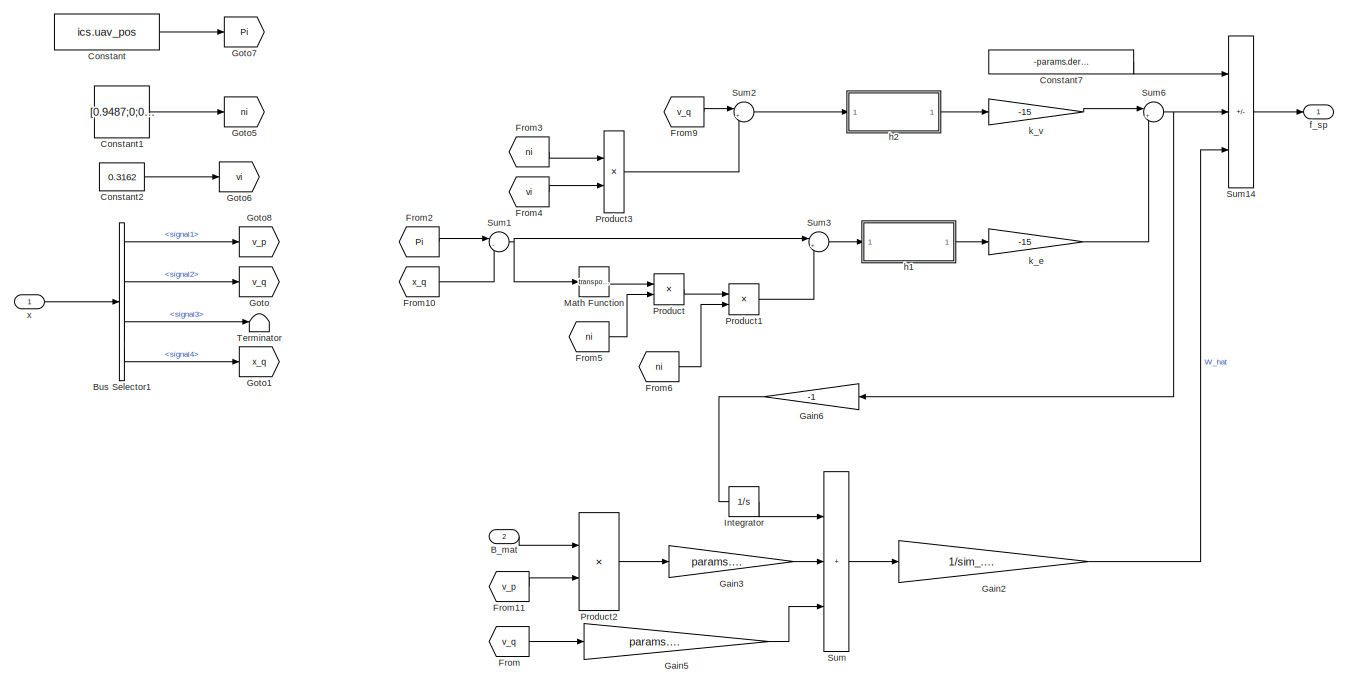
[diagram: Controller/UDE controller  - part 1/2, left side, full height]
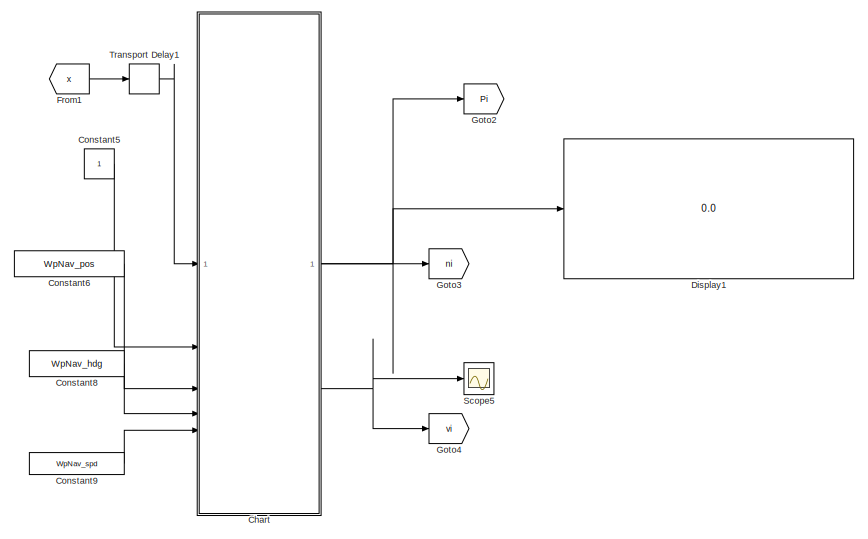
[diagram: Controller/UDE controller  - part 2/2, right side, full height]
BLOCK [SubSystem] Controller/UDE controller 
BLOCK [Inport] Controller/UDE controller /B_mat
  Port = 2
BLOCK [BusSelector] Controller/UDE controller /Bus Selector1
  OutputSignals = signal1,signal2,signal3,signal4
BLOCK [SubSystem] Controller/UDE controller /Chart
  Commented = on
  ErrorFcn = Stateflow.Translate.translate
  PermitHierarchicalResolution = ExplicitOnly
  SFBlockType = Chart
  TreatAsAtomicUnit = on
BLOCK [Demux] Controller/UDE controller /Chart/ Demux 
  Outputs = 1
BLOCK [S-Function] Controller/UDE controller /Chart/ SFunction 
  EnableBusSupport = off
  FunctionName = sf_sfun
  PortCounts = [5 4]
  SFcnIsStateOwnerBlock = off
  SFunctionDeploymentMode = off
  Tag = Stateflow S-Function 3
BLOCK [Terminator] Controller/UDE controller /Chart/ Terminator 
BLOCK [Inport] Controller/UDE controller /Chart/Position
BLOCK [Inport] Controller/UDE controller /Chart/WayPoint_P
  Port = 3
BLOCK [Outport] Controller/UDE controller /Chart/WayPoint_Pi
BLOCK [Inport] Controller/UDE controller /Chart/WayPoint_n
  Port = 4
BLOCK [Outport] Controller/UDE controller /Chart/WayPoint_ni
  Port = 2
BLOCK [Inport] Controller/UDE controller /Chart/WayPoint_v
  Port = 5
BLOCK [Outport] Controller/UDE controller /Chart/WayPoint_vi
  Port = 3
BLOCK [Inport] Controller/UDE controller /Chart/initial_value
  Port = 2
BLOCK [Constant] Controller/UDE controller /Constant
  Value = ics.uav_pos
  VectorParams1D = off
BLOCK [Constant] Controller/UDE controller /Constant1
  Value = [0.9487;0;0.3162]
  VectorParams1D = off
BLOCK [Constant] Controller/UDE controller /Constant2
  Value = 0.3162
BLOCK [Constant] Controller/UDE controller /Constant5
  Commented = on
BLOCK [Constant] Controller/UDE controller /Constant6
  Commented = on
  Value = WpNav_pos
BLOCK [Constant] Controller/UDE controller /Constant7
  Value = -params.derived.sys_weight
  VectorParams1D = off
BLOCK [Constant] Controller/UDE controller /Constant8
  Commented = on
  Value = WpNav_hdg
BLOCK [Constant] Controller/UDE controller /Constant9
  Commented = on
  Value = WpNav_spd
BLOCK [Display] Controller/UDE controller /Display1
  Commented = on
  Decimation = 1
BLOCK [From] Controller/UDE controller /From
  GotoTag = v_q
BLOCK [From] Controller/UDE controller /From1
  Commented = on
  GotoTag = x
BLOCK [From] Controller/UDE controller /From10
  GotoTag = x_q
BLOCK [From] Controller/UDE controller /From11
  GotoTag = v_p
BLOCK [From] Controller/UDE controller /From2
  GotoTag = Pi
BLOCK [From] Controller/UDE controller /From3
  GotoTag = ni
BLOCK [From] Controller/UDE controller /From4
  GotoTag = vi
BLOCK [From] Controller/UDE controller /From5
  GotoTag = ni
BLOCK [From] Controller/UDE controller /From6
  GotoTag = ni
BLOCK [From] Controller/UDE controller /From9
  GotoTag = v_q
BLOCK [Gain] Controller/UDE controller /Gain2
  Gain = 1/sim_.lambda_theta
BLOCK [Gain] Controller/UDE controller /Gain3
  Gain = params.pld_mass
BLOCK [Gain] Controller/UDE controller /Gain5
  Gain = params.derived.sys_mass
BLOCK [Gain] Controller/UDE controller /Gain6
  Gain = -1
  NameLocation = top
BLOCK [Goto] Controller/UDE controller /Goto
  GotoTag = v_q
BLOCK [Goto] Controller/UDE controller /Goto1
  GotoTag = x_q
BLOCK [Goto] Controller/UDE controller /Goto2
  Commented = on
  GotoTag = Pi
BLOCK [Goto] Controller/UDE controller /Goto3
  Commented = on
  GotoTag = ni
BLOCK [Goto] Controller/UDE controller /Goto4
  Commented = on
  GotoTag = vi
BLOCK [Goto] Controller/UDE controller /Goto5
  GotoTag = ni
BLOCK [Goto] Controller/UDE controller /Goto6
  GotoTag = vi
BLOCK [Goto] Controller/UDE controller /Goto7
  GotoTag = Pi
BLOCK [Goto] Controller/UDE controller /Goto8
  GotoTag = v_p
BLOCK [Integrator] Controller/UDE controller /Integrator
BLOCK [Math] Controller/UDE controller /Math Function
  Operator = transpose
  SignedPower = on
BLOCK [Product] Controller/UDE controller /Product
  Multiplication = Matrix(*)
BLOCK [Product] Controller/UDE controller /Product1
BLOCK [Product] Controller/UDE controller /Product2
  Multiplication = Matrix(*)
BLOCK [Product] Controller/UDE controller /Product3
BLOCK [Scope] Controller/UDE controller /Scope5
  ActiveDisplayYMaximum = 11.25
  ActiveDisplayYMinimum = -1.25
  Commented = on
  DataLoggingVariableName = ScopeData3
  Floating = off
  GraphicalSettings = {"GraphicalSettings":{"LegacySettings":true,"Style":{"AxesScalingProperties":{"ScaleAxesLimitsAtStop":false},"Style":{"AxesColor":"[0 0 0]","ChannelNames":[""],"ColorOrder":"[1 1 0.0666666666666667;0.0745098039215686 0.623529411764706 1;1 0.411764705882353 0.16078431372549;0.392156862745098 0.831372549019608 0.0745098039215686;0.717647058823529 0.274509803921569 1;0.0588235294117647 1 1;1 0.074509...<+399ch>
  MultipleDisplayCache = [{"MaxYLimMag":11.25,"MaxYLimReal":11.25,"MinYLimMag":0,"MinYLimReal":-1.25,"PlotAsMagnitudePhase":false,"ShowGrid":true,"ShowLegend":false,"Title":"%<SignalLabel>","YLabel":""}]
  NumInputPorts = 1
  WasSavedAsWebScope = on
  WindowPosition = [225 4 1086 744]
BLOCK [Sum] Controller/UDE controller /Sum
  IconShape = rectangular
  Inputs = +++
BLOCK [Sum] Controller/UDE controller /Sum1
  Inputs = |-+
BLOCK [Sum] Controller/UDE controller /Sum14
  IconShape = rectangular
  Inputs = ++-
BLOCK [Sum] Controller/UDE controller /Sum2
  Inputs = |+-
BLOCK [Sum] Controller/UDE controller /Sum3
  Inputs = |+-
BLOCK [Sum] Controller/UDE controller /Sum6
  Inputs = |++
BLOCK [Terminator] Controller/UDE controller /Terminator
BLOCK [TransportDelay] Controller/UDE controller /Transport Delay1
  Commented = on
  DelayTime = 0.3
BLOCK [Outport] Controller/UDE controller /f_sp
BLOCK [SubSystem] Controller/UDE controller /h1
BLOCK [Product] Controller/UDE controller /h1/Divide
  Inputs = */
BLOCK [Math] Controller/UDE controller /h1/Math Function
  Operator = transpose
  SignedPower = on
BLOCK [Product] Controller/UDE controller /h1/Product
  Multiplication = Matrix(*)
BLOCK [Sum] Controller/UDE controller /h1/Sum
  Inputs = |++
BLOCK [Inport] Controller/UDE controller /h1/X
BLOCK [Constant] Controller/UDE controller /h1/c_x
BLOCK [Outport] Controller/UDE controller /h1/h(X)
BLOCK [SubSystem] Controller/UDE controller /h2
BLOCK [Product] Controller/UDE controller /h2/Divide
  Inputs = */
BLOCK [Math] Controller/UDE controller /h2/Math Function
  Operator = transpose
  SignedPower = on
BLOCK [Product] Controller/UDE controller /h2/Product
  Multiplication = Matrix(*)
BLOCK [Sum] Controller/UDE controller /h2/Sum
  Inputs = |++
BLOCK [Inport] Controller/UDE controller /h2/X
BLOCK [Constant] Controller/UDE controller /h2/c_v
BLOCK [Outport] Controller/UDE controller /h2/h(X)
BLOCK [Gain] Controller/UDE controller /k_e
  Gain = -15
BLOCK [Gain] Controller/UDE controller /k_v
  Gain = -15
BLOCK [Inport] Controller/UDE controller /x
BLOCK [Concatenate] Controller/augmented state
BLOCK [Constant] Controller/iteration counter
  Value = it
BLOCK [Inport] Controller/states_control
BLOCK [SubSystem] Coord Trans
BLOCK [Inport] Coord Trans/B_hat
  Port = 6
BLOCK [Inport] Coord Trans/B_hat_dot
  Port = 7
BLOCK [BusCreator] Coord Trans/Bus Creator
  DisplayOption = bar
  InheritFromInputs = on
  Inputs = 8
BLOCK [Constant] Coord Trans/Constant2
  Value = diag([1 1 1])
BLOCK [Constant] Coord Trans/Constant3
  Value = diag([1 1 1])
BLOCK [From] Coord Trans/From
  GotoTag = pld_abs_vel
BLOCK [From] Coord Trans/From1
  GotoTag = L_vec
BLOCK [From] Coord Trans/From10
  GotoTag = r_q
BLOCK [From] Coord Trans/From11
  GotoTag = pld_rel_pos
BLOCK [From] Coord Trans/From12
  GotoTag = L_vec
BLOCK [From] Coord Trans/From13
  GotoTag = pld_abs_pos
BLOCK [From] Coord Trans/From14
  GotoTag = B_hat
BLOCK [From] Coord Trans/From15
  GotoTag = B_hat_dot
BLOCK [From] Coord Trans/From16
  GotoTag = B_dot_mat_I
BLOCK [From] Coord Trans/From17
  GotoTag = pld_rel_vel
BLOCK [From] Coord Trans/From18
  GotoTag = v_q_dot
BLOCK [From] Coord Trans/From19
  GotoTag = L_vec_p
BLOCK [From] Coord Trans/From2
  GotoTag = pld_rel_vel
BLOCK [From] Coord Trans/From3
  GotoTag = B_hat
BLOCK [From] Coord Trans/From4
  GotoTag = uav_vel
BLOCK [From] Coord Trans/From7
  GotoTag = B_mat_I
  NameLocation = top
BLOCK [From] Coord Trans/From8
  GotoTag = uav_rel_vel
BLOCK [From] Coord Trans/From9
  GotoTag = r
BLOCK [Gain] Coord Trans/Gain
  Gain = -1
BLOCK [Gain] Coord Trans/Gain1
  Gain = -1
BLOCK [Gain] Coord Trans/Gain2
  Gain = -1
BLOCK [Goto] Coord Trans/Goto
  GotoTag = uav_vel
BLOCK [Goto] Coord Trans/Goto1
  GotoTag = pld_rel_vel
BLOCK [Goto] Coord Trans/Goto10
  GotoTag = pld_rel_pos
BLOCK [Goto] Coord Trans/Goto11
  GotoTag = pld_abs_pos
BLOCK [Goto] Coord Trans/Goto12
  GotoTag = r_q
BLOCK [Goto] Coord Trans/Goto13
  GotoTag = uav_rel_vel
BLOCK [Goto] Coord Trans/Goto15
  GotoTag = pld_abs_vel
BLOCK [Goto] Coord Trans/Goto18
  GotoTag = L_vec_p
BLOCK [Goto] Coord Trans/Goto2
  GotoTag = v_q_dot
BLOCK [Goto] Coord Trans/Goto4
  GotoTag = r
BLOCK [Goto] Coord Trans/Goto5
  GotoTag = B_hat
BLOCK [Goto] Coord Trans/Goto6
  GotoTag = B_hat_dot
BLOCK [Goto] Coord Trans/Goto7
  GotoTag = L_vec
BLOCK [Goto] Coord Trans/Goto8
  GotoTag = B_dot_mat_I
BLOCK [Goto] Coord Trans/Goto9
  GotoTag = B_mat_I
BLOCK [Inport] Coord Trans/L_vec
  Port = 8
BLOCK [Product] Coord Trans/Product1
  Multiplication = Matrix(*)
BLOCK [Product] Coord Trans/Product2
  Multiplication = Matrix(*)
BLOCK [Product] Coord Trans/Product7
  Multiplication = Matrix(*)
BLOCK [Outport] Coord Trans/States_Control
  VectorParamsAs1DForOutWhenUnconnected = off
BLOCK [Sum] Coord Trans/Sum
  IconShape = rectangular
BLOCK [Sum] Coord Trans/Sum1
  Inputs = |++
BLOCK [Terminator] Coord Trans/Terminator
BLOCK [Inport] Coord Trans/r
  Port = 5
BLOCK [Inport] Coord Trans/v_p
  Port = 2
BLOCK [Inport] Coord Trans/v_p_dot
  Port = 4
BLOCK [Inport] Coord Trans/v_q
BLOCK [Inport] Coord Trans/v_q_dot
  Port = 3
BLOCK [Scope] Coord Trans/x_p inertial
  ActiveDisplayYMaximum = 0.375
  ActiveDisplayYMinimum = -3.375
  DataLoggingVariableName = ScopeData1
  Floating = off
  GraphicalSettings = {"GraphicalSettings":{"LegacySettings":true,"Style":{"Style":{"AxesColor":"[0 0 0]","ChannelNames":[""],"ColorOrder":"[1 1 0.0666666666666667;0.0745098039215686 0.623529411764706 1;1 0.411764705882353 0.16078431372549;0.392156862745098 0.831372549019608 0.0745098039215686;0.717647058823529 0.274509803921569 1;0.0588235294117647 1 1;1 0.0745098039215686 0.650980392156863]","CurrentConfiguration":"e...<+406ch>
  MultipleDisplayCache = [{"MaxYLimMag":3.375,"MaxYLimReal":0.375,"MinYLimMag":0,"MinYLimReal":-3.375,"PlotAsMagnitudePhase":false,"ShowGrid":true,"ShowLegend":false,"Title":"%<SignalLabel>","YLabel":""}]
  NumInputPorts = 1
  WasSavedAsWebScope = on
BLOCK [Inport] Coord Trans/x_q
  Port = 9
BLOCK [Outport] F_des
  Port = 4
  SignalName = F_des
BLOCK [Outport] F_lift
  Port = 3
  SignalName = F_lift
BLOCK [Scope] Force
  ActiveDisplayYMaximum = 10.24437
  ActiveDisplayYMinimum = -50.13137
  DataLoggingVariableName = ScopeData1
  Floating = off
  GraphicalSettings = {"GraphicalSettings":{"LegacySettings":true,"Style":{"Style":{"AxesColor":"[0 0 0]","ChannelNames":[""],"ColorOrder":"[1 1 0.0666666666666667;0.0745098039215686 0.623529411764706 1;1 0.411764705882353 0.16078431372549;0.392156862745098 0.831372549019608 0.0745098039215686;0.717647058823529 0.274509803921569 1;0.0588235294117647 1 1;1 0.0745098039215686 0.650980392156863]","CurrentConfiguration":"e...<+517ch>
  MultipleDisplayCache = [{"MaxYLimMag":50.13137,"MaxYLimReal":10.24437,"MinYLimMag":0,"MinYLimReal":-50.13137,"PlotAsMagnitudePhase":false,"ShowGrid":true,"ShowLegend":true,"Title":"%<SignalLabel>","YLabel":""}]
  NumInputPorts = 2
  ShowLegend = on
  WasSavedAsWebScope = on
BLOCK [From] From
  GotoTag = pld_rel_vel
BLOCK [From] From1
  GotoTag = pld_rel_pos
BLOCK [From] From10
  GotoTag = uav_vel
BLOCK [From] From11
  GotoTag = B_mat
BLOCK [From] From12
  GotoTag = pld_rel_pos
BLOCK [From] From13
  GotoTag = sys_states
BLOCK [From] From14
  GotoTag = uav_pos
BLOCK [From] From15
  GotoTag = uav_vel
BLOCK [From] From18
  GotoTag = pld_rel_vel
BLOCK [From] From2
  GotoTag = B_mat
BLOCK [From] From3
  GotoTag = B_dot_mat
BLOCK [From] From34
  GotoTag = B_mat
BLOCK [From] From35
  GotoTag = B_dot_mat
BLOCK [From] From36
  GotoTag = pld_rel_acc
  NameLocation = top
BLOCK [From] From37
  GotoTag = pld_rel_vel
BLOCK [From] From38
  GotoTag = uav_vel
BLOCK [From] From4
  GotoTag = B_mat
BLOCK [From] From40
  GotoTag = uav_acc
  NameLocation = top
BLOCK [From] From41
  GotoTag = pld_rel_pos
BLOCK [From] From42
  GotoTag = L_vec
BLOCK [From] From43
  GotoTag = uav_pos
BLOCK [From] From5
  GotoTag = M_mat
BLOCK [From] From6
  GotoTag = B_mat
BLOCK [From] From7
  GotoTag = C_mat
BLOCK [From] From8
  GotoTag = pld_rel_vel
BLOCK [From] From9
  GotoTag = G_mat
BLOCK [Goto] Goto
  GotoTag = M_mat
BLOCK [Goto] Goto1
  GotoTag = pld_rel_pos
BLOCK [Goto] Goto10
  GotoTag = pld_rel_vel
BLOCK [Goto] Goto11
  GotoTag = uav_vel
BLOCK [Goto] Goto12
  GotoTag = sys_states
BLOCK [Goto] Goto13
  GotoTag = uav_acc
BLOCK [Goto] Goto19
  GotoTag = States_Control
  NameLocation = top
BLOCK [Goto] Goto2
  GotoTag = B_mat
BLOCK [Goto] Goto3
  GotoTag = B_dot_mat
BLOCK [Goto] Goto4
  GotoTag = L_vec
BLOCK [Goto] Goto5
  GotoTag = C_mat
BLOCK [Goto] Goto6
  GotoTag = G_mat
BLOCK [Goto] Goto7
  GotoTag = H_mat
BLOCK [Goto] Goto8
  GotoTag = uav_pos
BLOCK [Goto] Goto9
  GotoTag = pld_rel_acc
BLOCK [SubSystem] Gravity
BLOCK [Inport] Gravity/B_mat
BLOCK [Constant] Gravity/Constant
  Value = zeros(2,3)
  VectorParams1D = off
BLOCK [Constant] Gravity/Constant1
  Value = [eye(3),eye(3)]
  VectorParams1D = off
BLOCK [Constant] Gravity/Constant2
  Value = params.derived.uav_weight
BLOCK [Constant] Gravity/Constant3
  Value = params.derived.pld_weight
BLOCK [From] Gravity/From
  GotoTag = H
BLOCK [Outport] Gravity/G_mat
BLOCK [Goto] Gravity/Goto
  GotoTag = H
BLOCK [Outport] Gravity/H_mat
  Port = 2
BLOCK [Concatenate] Gravity/Matrix Concatenate
  ConcatenateDimension = 2
  Mode = Multidimensional array
BLOCK [Concatenate] Gravity/Matrix Concatenate1
  Mode = Multidimensional array
BLOCK [Concatenate] Gravity/Matrix Concatenate2
BLOCK [Product] Gravity/Matrix Multiply
  Multiplication = Matrix(*)
BLOCK [Math] Gravity/Transpose
  Operator = transpose
BLOCK [Reference] LDL Inverse  REF=dspinverses/LDL Inverse
  SourceBlock = dspinverses/LDL Inverse
  SourceType = LDL Inverse
BLOCK [SubSystem] Mass
BLOCK [Inport] Mass/B_mat
BLOCK [Constant] Mass/Constant
  Value = eye(3)
BLOCK [From] Mass/From
  GotoTag = B
BLOCK [From] Mass/From1
  GotoTag = B
BLOCK [From] Mass/From2
  GotoTag = B
BLOCK [Goto] Mass/Goto
  GotoTag = B
BLOCK [Outport] Mass/M_mat
BLOCK [Concatenate] Mass/Matrix Concatenate
  ConcatenateDimension = 2
  Mode = Multidimensional array
BLOCK [Concatenate] Mass/Matrix Concatenate1
  Mode = Multidimensional array
BLOCK [Concatenate] Mass/Matrix Concatenate2
  Mode = Multidimensional array
BLOCK [Product] Mass/Matrix Multiply
  Multiplication = Matrix(*)
BLOCK [Gain] Mass/Multiply
  Gain = params.pld_mass
BLOCK [Gain] Mass/Multiply1
  Gain = params.derived.sys_mass
BLOCK [Gain] Mass/Multiply2
  Gain = params.pld_mass
BLOCK [Math] Mass/Transpose
  Operator = transpose
BLOCK [Math] Mass/Transpose1
  Operator = transpose
BLOCK [Product] Matrix Multiply
  Multiplication = Matrix(*)
BLOCK [Product] Matrix Multiply1
  Multiplication = Matrix(*)
BLOCK [Outport] Output
  Port = 5
  SignalName = uav_pos
BLOCK [Outport] Output1
  Port = 6
  SignalName = pld_rel_pos
BLOCK [Outport] Output2
  Port = 7
  SignalName = pld_rel_vel
BLOCK [Outport] Output3
  Port = 8
  SignalName = uav_vel
BLOCK [Selector] Selector
  IndexOptions = Index vector (dialog)
  Indices = [1 2]
  InputPortWidth = 5
  OutputSizes = 1
BLOCK [Selector] Selector1
  IndexOptions = Index vector (dialog)
  Indices = [3 4 5]
  InputPortWidth = 5
  OutputSizes = 1
BLOCK [Selector] Selector2
  IndexOptions = Index vector (dialog)
  Indices = [3 4 5]
  InputPortWidth = 5
  OutputSizes = 1
BLOCK [Selector] Selector3
  IndexOptions = Index vector (dialog)
  Indices = [1 2]
  InputPortWidth = 5
  OutputSizes = 1
BLOCK [Integrator] acc integrator
  InitialConditionSource = external
BLOCK [SubSystem] mapping matrix B and B_dot
BLOCK [Sum] mapping matrix B and B_dot/Add
  IconShape = rectangular
  Inputs = +-
BLOCK [Sum] mapping matrix B and B_dot/Add1
  IconShape = rectangular
BLOCK [Outport] mapping matrix B and B_dot/B_dot_mat
  IconDisplay = Signal name
  Port = 2
BLOCK [Outport] mapping matrix B and B_dot/B_mat
  IconDisplay = Signal name
BLOCK [Constant] mapping matrix B and B_dot/Constant
  Value = params.cable_len
BLOCK [Constant] mapping matrix B and B_dot/Constant1
  Value = eye(2)
BLOCK [Constant] mapping matrix B and B_dot/Constant2
  Value = zeros(2)
BLOCK [Constant] mapping matrix B and B_dot/Constant3
  Value = 3
BLOCK [Display] mapping matrix B and B_dot/Display
  Decimation = 1
BLOCK [Display] mapping matrix B and B_dot/Display1
  Decimation = 1
BLOCK [Display] mapping matrix B and B_dot/Display2
  Decimation = 1
BLOCK [Product] mapping matrix B and B_dot/Divide
  Inputs = */
BLOCK [Product] mapping matrix B and B_dot/Divide2
  Inputs = */
BLOCK [DotProduct] mapping matrix B and B_dot/Dot Product
  OutDataTypeStr = Inherit: Inherit via internal rule
BLOCK [From] mapping matrix B and B_dot/From
  GotoTag = r_p
BLOCK [From] mapping matrix B and B_dot/From1
  GotoTag = r_p
BLOCK [From] mapping matrix B and B_dot/From2
  GotoTag = r_p
BLOCK [From] mapping matrix B and B_dot/From3
  GotoTag = L_z
BLOCK [From] mapping matrix B and B_dot/From5
  GotoTag = L_z
BLOCK [From] mapping matrix B and B_dot/From6
  GotoTag = L_z
BLOCK [From] mapping matrix B and B_dot/From7
  GotoTag = v_p
BLOCK [From] mapping matrix B and B_dot/From8
  GotoTag = v_p
BLOCK [From] mapping matrix B and B_dot/From9
  GotoTag = r_p
BLOCK [Goto] mapping matrix B and B_dot/Goto
  GotoTag = r_p
BLOCK [Goto] mapping matrix B and B_dot/Goto1
  GotoTag = v_p
BLOCK [Goto] mapping matrix B and B_dot/Goto2
  GotoTag = L_z
BLOCK [Outport] mapping matrix B and B_dot/L_vec
  IconDisplay = Signal name
  Port = 3
BLOCK [Concatenate] mapping matrix B and B_dot/Matrix Concatenate
BLOCK [Concatenate] mapping matrix B and B_dot/Matrix Concatenate1
  Mode = Multidimensional array
BLOCK [Concatenate] mapping matrix B and B_dot/Matrix Concatenate2
  Mode = Multidimensional array
BLOCK [Product] mapping matrix B and B_dot/Matrix Multiply1
  Inputs = 3
  Multiplication = Matrix(*)
BLOCK [Gain] mapping matrix B and B_dot/Multiply1
  Gain = -1
BLOCK [Gain] mapping matrix B and B_dot/Multiply2
  Gain = -1
BLOCK [Product] mapping matrix B and B_dot/Product
BLOCK [Sqrt] mapping matrix B and B_dot/Sqrt
BLOCK [Math] mapping matrix B and B_dot/Square
  Operator = square
BLOCK [Math] mapping matrix B and B_dot/Square1
  Operator = pow
BLOCK [Math] mapping matrix B and B_dot/Square2
  Operator = square
BLOCK [Math] mapping matrix B and B_dot/Transpose1
  Operator = transpose
BLOCK [Math] mapping matrix B and B_dot/Transpose2
  Operator = transpose
BLOCK [Math] mapping matrix B and B_dot/Transpose3
  Operator = transpose
BLOCK [Inport] mapping matrix B and B_dot/pld_rel_pos
  IconDisplay = Port number and signal name
BLOCK [Inport] mapping matrix B and B_dot/pld_rel_vel
  IconDisplay = Port number and signal name
  Port = 2
BLOCK [Scope] pld_rel_pos
  ActiveDisplayYMaximum = 0.05217
  ActiveDisplayYMinimum = -0.0462
  DataLoggingVariableName = ScopeData1
  Floating = off
  GraphicalSettings = {"GraphicalSettings":{"LegacySettings":true,"Style":{"Style":{"AxesColor":"[0 0 0]","ChannelNames":[""],"ColorOrder":"[1 1 0.0666666666666667;0.0745098039215686 0.623529411764706 1;1 0.411764705882353 0.16078431372549;0.392156862745098 0.831372549019608 0.0745098039215686;0.717647058823529 0.274509803921569 1;0.0588235294117647 1 1;1 0.0745098039215686 0.650980392156863]","CurrentConfiguration":"e...<+390ch>
  MultipleDisplayCache = [{"MaxYLimMag":0.05217,"MaxYLimReal":0.05217,"MinYLimMag":0,"MinYLimReal":-0.0462,"PlotAsMagnitudePhase":false,"ShowGrid":true,"ShowLegend":true,"Title":"Payload relative position","YLabel":"position (m)"}]
  NumInputPorts = 1
  ShowLegend = on
  ShowTimeAxisLabel = on
  Title = Payload relative position
  WasSavedAsWebScope = on
  YLabel = position (m)
BLOCK [Scope] pld_rel_vel
  ActiveDisplayYMaximum = 0.12291
  ActiveDisplayYMinimum = -0.10534
  DataLoggingVariableName = ScopeData1
  Floating = off
  GraphicalSettings = {"GraphicalSettings":{"LegacySettings":true,"Style":{"Style":{"AxesColor":"[0 0 0]","ChannelNames":[""],"ColorOrder":"[1 1 0.0666666666666667;0.0745098039215686 0.623529411764706 1;1 0.411764705882353 0.16078431372549;0.392156862745098 0.831372549019608 0.0745098039215686;0.717647058823529 0.274509803921569 1;0.0588235294117647 1 1;1 0.0745098039215686 0.650980392156863]","CurrentConfiguration":"e...<+437ch>
  MultipleDisplayCache = [{"MaxYLimMag":0.12291,"MaxYLimReal":0.12291,"MinYLimMag":0,"MinYLimReal":-0.10534,"PlotAsMagnitudePhase":false,"ShowGrid":true,"ShowLegend":true,"Title":"UAV Position","YLabel":"position (m)"}]
  NumInputPorts = 1
  ShowLegend = on
  ShowTimeAxisLabel = on
  Title = UAV Position
  WasSavedAsWebScope = on
  YLabel = position (m)
BLOCK [Outport] u_input
  Port = 2
  SignalName = u_input
BLOCK [Scope] uav_pos
  ActiveDisplayYMaximum = 2.12156
  ActiveDisplayYMinimum = -3.62298
  DataLoggingVariableName = ScopeData2
  Floating = off
  GraphicalSettings = {"GraphicalSettings":{"LegacySettings":true,"Style":{"Style":{"AxesColor":"[0 0 0]","ChannelNames":[""],"ColorOrder":"[1 1 0.0666666666666667;0.0745098039215686 0.623529411764706 1;1 0.411764705882353 0.16078431372549;0.392156862745098 0.831372549019608 0.0745098039215686;0.717647058823529 0.274509803921569 1;0.0588235294117647 1 1;1 0.0745098039215686 0.650980392156863]","CurrentConfiguration":"e...<+440ch>
  MultipleDisplayCache = [{"MaxYLimMag":3.62298,"MaxYLimReal":2.12156,"MinYLimMag":0,"MinYLimReal":-3.62298,"PlotAsMagnitudePhase":false,"ShowGrid":true,"ShowLegend":true,"Title":"UAV Position","YLabel":"position (m)"}]
  NumInputPorts = 1
  ShowLegend = on
  ShowTimeAxisLabel = on
  Title = UAV Position
  WasSavedAsWebScope = on
  YLabel = position (m)
BLOCK [Scope] uav_vel
  ActiveDisplayYMaximum = 0.54304
  ActiveDisplayYMinimum = -0.42187
  DataLoggingVariableName = ScopeData2
  Floating = off
  GraphicalSettings = {"GraphicalSettings":{"LegacySettings":true,"Style":{"Style":{"AxesColor":"[0 0 0]","ChannelNames":[""],"ColorOrder":"[1 1 0.0666666666666667;0.0745098039215686 0.623529411764706 1;1 0.411764705882353 0.16078431372549;0.392156862745098 0.831372549019608 0.0745098039215686;0.717647058823529 0.274509803921569 1;0.0588235294117647 1 1;1 0.0745098039215686 0.650980392156863]","CurrentConfiguration":"e...<+452ch>
  MultipleDisplayCache = [{"MaxYLimMag":0.54304,"MaxYLimReal":0.54304,"MinYLimMag":0,"MinYLimReal":-0.42187,"PlotAsMagnitudePhase":false,"ShowGrid":true,"ShowLegend":true,"Title":"UAV Velocity","YLabel":"speed (m\/s)"}]
  NumInputPorts = 1
  ShowLegend = on
  ShowTimeAxisLabel = on
  Title = UAV Velocity
  WasSavedAsWebScope = on
  YLabel = speed (m/s)
BLOCK [SubSystem] velocity integrator
BLOCK [Constant] velocity integrator/Constant
  Value = ics.pld_rel_pos
BLOCK [Constant] velocity integrator/Constant1
  Value = ics.uav_pos
BLOCK [Integrator] velocity integrator/Integrator
  InitialConditionSource = external
BLOCK [Integrator] velocity integrator/Integrator1
  InitialConditionSource = external
BLOCK [Inport] velocity integrator/v_p
  IconDisplay = Port number and signal name
BLOCK [Inport] velocity integrator/v_q
  IconDisplay = Port number and signal name
  Port = 2
BLOCK [Outport] velocity integrator/x_p
  IconDisplay = Port number and signal name
BLOCK [Outport] velocity integrator/x_q
  IconDisplay = Port number and signal name
  Port = 2
BLOCK [Outport] x_states
  SignalName = all_states
ANNOTATION (root): A and B Matrix
ANNOTATION (root): C Matrix
ANNOTATION (root): Coordinate Transformation
ANNOTATION (root): EOM
ANNOTATION (root): Gravity
ANNOTATION (root): Integration
ANNOTATION (root): Mass Matrix
ANNOTATION Controller: (iniital stabilizing policy)
ANNOTATION Controller: Attitude Dynamics + Tracker
ANNOTATION Controller: Total Control Force
ANNOTATION Controller: iLQC
ANNOTATION Controller/Attitude Tracker/Attitude Dynamics: Compute payload attitude
ANNOTATION Coord Trans: Auxiliary matrix (B_mat): (The L vector points upwards in the controller design and the r vector is reversed at the same time so the sign changes cancel each other and the auxiliary matrices remain the same)
ANNOTATION Coord Trans: Cable vector
ANNOTATION Coord Trans: Inertial position of the payload
ANNOTATION Coord Trans: Inertial velocity of the payload:
ANNOTATION Coord Trans: Quadrotor relative position and velocity
ANNOTATION Coord Trans: States in the Drone Priority Frame
ANNOTATION Coord Trans: States in the Payload Priority Frame
LINE Add:1 -> Matrix Multiply1:2
NET Bus Creator:1 -> Bus to Vector:1, Controller:1
LINE Bus to Vector:1 -> x_states:1
LINE C matrix/B:1 -> C matrix/Transpose:1
NET C matrix/B_dot:1 -> C matrix/Matrix Concatenate1:2, C matrix/Matrix Multiply:2
LINE C matrix/Constant:1 -> C matrix/Matrix Concatenate:2
LINE C matrix/Matrix Concatenate1:1 -> C matrix/Multiply:1
LINE C matrix/Matrix Concatenate:1 -> C matrix/C:1
LINE C matrix/Matrix Multiply:1 -> C matrix/Matrix Concatenate1:1
LINE C matrix/Multiply:1 -> C matrix/Matrix Concatenate:1
LINE C matrix/Transpose:1 -> C matrix/Matrix Multiply:1
LINE C matrix:1 -> Goto5:1
LINE Constant8:1 -> acc integrator:2
NET Controller/Attitude Tracker/Attitude Controller/Constant1:1 -> Controller/Attitude Tracker/Attitude Controller/Cross Matrix2:1, Controller/Attitude Tracker/Attitude Controller/Product8:2
NET Controller/Attitude Tracker/Attitude Controller/Constant2:1 -> Controller/Attitude Tracker/Attitude Controller/Cross Matrix1:1, Controller/Attitude Tracker/Attitude Controller/Product6:2
LINE Controller/Attitude Tracker/Attitude Controller/Constant3:1 -> Controller/Attitude Tracker/Attitude Controller/Product2:1
LINE Controller/Attitude Tracker/Attitude Controller/Constant5:1 -> Controller/Attitude Tracker/Attitude Controller/Product12:2
LINE Controller/Attitude Tracker/Attitude Controller/Constant6:1 -> Controller/Attitude Tracker/Attitude Controller/Product14:2
NET Controller/Attitude Tracker/Attitude Controller/Constant:1 -> Controller/Attitude Tracker/Attitude Controller/Cross Matrix:1, Controller/Attitude Tracker/Attitude Controller/Product4:2
LINE Controller/Attitude Tracker/Attitude Controller/Cross Matrix/A:1 -> Controller/Attitude Tracker/Attitude Controller/Cross Matrix/Demux2:1
LINE Controller/Attitude Tracker/Attitude Controller/Cross Matrix/Constant1:1 -> Controller/Attitude Tracker/Attitude Controller/Cross Matrix/Matrix Concatenate1:1
LINE Controller/Attitude Tracker/Attitude Controller/Cross Matrix/Constant2:1 -> Controller/Attitude Tracker/Attitude Controller/Cross Matrix/Matrix Concatenate2:2
LINE Controller/Attitude Tracker/Attitude Controller/Cross Matrix/Constant3:1 -> Controller/Attitude Tracker/Attitude Controller/Cross Matrix/Matrix Concatenate3:3
NET Controller/Attitude Tracker/Attitude Controller/Cross Matrix/Demux2:1 -> Controller/Attitude Tracker/Attitude Controller/Cross Matrix/Gain1:1, Controller/Attitude Tracker/Attitude Controller/Cross Matrix/Matrix Concatenate2:3
NET Controller/Attitude Tracker/Attitude Controller/Cross Matrix/Demux2:2 -> Controller/Attitude Tracker/Attitude Controller/Cross Matrix/Gain2:1, Controller/Attitude Tracker/Attitude Controller/Cross Matrix/Matrix Concatenate3:1
NET Controller/Attitude Tracker/Attitude Controller/Cross Matrix/Demux2:3 -> Controller/Attitude Tracker/Attitude Controller/Cross Matrix/Gain:1, Controller/Attitude Tracker/Attitude Controller/Cross Matrix/Matrix Concatenate1:2
LINE Controller/Attitude Tracker/Attitude Controller/Cross Matrix/Gain1:1 -> Controller/Attitude Tracker/Attitude Controller/Cross Matrix/Matrix Concatenate3:2
LINE Controller/Attitude Tracker/Attitude Controller/Cross Matrix/Gain2:1 -> Controller/Attitude Tracker/Attitude Controller/Cross Matrix/Matrix Concatenate1:3
LINE Controller/Attitude Tracker/Attitude Controller/Cross Matrix/Gain:1 -> Controller/Attitude Tracker/Attitude Controller/Cross Matrix/Matrix Concatenate2:1
LINE Controller/Attitude Tracker/Attitude Controller/Cross Matrix/Matrix Concatenate1:1 -> Controller/Attitude Tracker/Attitude Controller/Cross Matrix/Matrix Concatenate:1
LINE Controller/Attitude Tracker/Attitude Controller/Cross Matrix/Matrix Concatenate2:1 -> Controller/Attitude Tracker/Attitude Controller/Cross Matrix/Matrix Concatenate:2
LINE Controller/Attitude Tracker/Attitude Controller/Cross Matrix/Matrix Concatenate3:1 -> Controller/Attitude Tracker/Attitude Controller/Cross Matrix/Matrix Concatenate:3
LINE Controller/Attitude Tracker/Attitude Controller/Cross Matrix/Matrix Concatenate:1 -> Controller/Attitude Tracker/Attitude Controller/Cross Matrix/AX:1
LINE Controller/Attitude Tracker/Attitude Controller/Cross Matrix1/A:1 -> Controller/Attitude Tracker/Attitude Controller/Cross Matrix1/Demux2:1
LINE Controller/Attitude Tracker/Attitude Controller/Cross Matrix1/Constant1:1 -> Controller/Attitude Tracker/Attitude Controller/Cross Matrix1/Matrix Concatenate1:1
LINE Controller/Attitude Tracker/Attitude Controller/Cross Matrix1/Constant2:1 -> Controller/Attitude Tracker/Attitude Controller/Cross Matrix1/Matrix Concatenate2:2
LINE Controller/Attitude Tracker/Attitude Controller/Cross Matrix1/Constant3:1 -> Controller/Attitude Tracker/Attitude Controller/Cross Matrix1/Matrix Concatenate3:3
NET Controller/Attitude Tracker/Attitude Controller/Cross Matrix1/Demux2:1 -> Controller/Attitude Tracker/Attitude Controller/Cross Matrix1/Gain1:1, Controller/Attitude Tracker/Attitude Controller/Cross Matrix1/Matrix Concatenate2:3
NET Controller/Attitude Tracker/Attitude Controller/Cross Matrix1/Demux2:2 -> Controller/Attitude Tracker/Attitude Controller/Cross Matrix1/Gain2:1, Controller/Attitude Tracker/Attitude Controller/Cross Matrix1/Matrix Concatenate3:1
NET Controller/Attitude Tracker/Attitude Controller/Cross Matrix1/Demux2:3 -> Controller/Attitude Tracker/Attitude Controller/Cross Matrix1/Gain:1, Controller/Attitude Tracker/Attitude Controller/Cross Matrix1/Matrix Concatenate1:2
LINE Controller/Attitude Tracker/Attitude Controller/Cross Matrix1/Gain1:1 -> Controller/Attitude Tracker/Attitude Controller/Cross Matrix1/Matrix Concatenate3:2
LINE Controller/Attitude Tracker/Attitude Controller/Cross Matrix1/Gain2:1 -> Controller/Attitude Tracker/Attitude Controller/Cross Matrix1/Matrix Concatenate1:3
LINE Controller/Attitude Tracker/Attitude Controller/Cross Matrix1/Gain:1 -> Controller/Attitude Tracker/Attitude Controller/Cross Matrix1/Matrix Concatenate2:1
LINE Controller/Attitude Tracker/Attitude Controller/Cross Matrix1/Matrix Concatenate1:1 -> Controller/Attitude Tracker/Attitude Controller/Cross Matrix1/Matrix Concatenate:1
LINE Controller/Attitude Tracker/Attitude Controller/Cross Matrix1/Matrix Concatenate2:1 -> Controller/Attitude Tracker/Attitude Controller/Cross Matrix1/Matrix Concatenate:2
LINE Controller/Attitude Tracker/Attitude Controller/Cross Matrix1/Matrix Concatenate3:1 -> Controller/Attitude Tracker/Attitude Controller/Cross Matrix1/Matrix Concatenate:3
LINE Controller/Attitude Tracker/Attitude Controller/Cross Matrix1/Matrix Concatenate:1 -> Controller/Attitude Tracker/Attitude Controller/Cross Matrix1/AX:1
LINE Controller/Attitude Tracker/Attitude Controller/Cross Matrix1:1 -> Controller/Attitude Tracker/Attitude Controller/Product7:1
LINE Controller/Attitude Tracker/Attitude Controller/Cross Matrix2/A:1 -> Controller/Attitude Tracker/Attitude Controller/Cross Matrix2/Demux2:1
LINE Controller/Attitude Tracker/Attitude Controller/Cross Matrix2/Constant1:1 -> Controller/Attitude Tracker/Attitude Controller/Cross Matrix2/Matrix Concatenate1:1
LINE Controller/Attitude Tracker/Attitude Controller/Cross Matrix2/Constant2:1 -> Controller/Attitude Tracker/Attitude Controller/Cross Matrix2/Matrix Concatenate2:2
LINE Controller/Attitude Tracker/Attitude Controller/Cross Matrix2/Constant3:1 -> Controller/Attitude Tracker/Attitude Controller/Cross Matrix2/Matrix Concatenate3:3
NET Controller/Attitude Tracker/Attitude Controller/Cross Matrix2/Demux2:1 -> Controller/Attitude Tracker/Attitude Controller/Cross Matrix2/Gain1:1, Controller/Attitude Tracker/Attitude Controller/Cross Matrix2/Matrix Concatenate2:3
NET Controller/Attitude Tracker/Attitude Controller/Cross Matrix2/Demux2:2 -> Controller/Attitude Tracker/Attitude Controller/Cross Matrix2/Gain2:1, Controller/Attitude Tracker/Attitude Controller/Cross Matrix2/Matrix Concatenate3:1
NET Controller/Attitude Tracker/Attitude Controller/Cross Matrix2/Demux2:3 -> Controller/Attitude Tracker/Attitude Controller/Cross Matrix2/Gain:1, Controller/Attitude Tracker/Attitude Controller/Cross Matrix2/Matrix Concatenate1:2
LINE Controller/Attitude Tracker/Attitude Controller/Cross Matrix2/Gain1:1 -> Controller/Attitude Tracker/Attitude Controller/Cross Matrix2/Matrix Concatenate3:2
LINE Controller/Attitude Tracker/Attitude Controller/Cross Matrix2/Gain2:1 -> Controller/Attitude Tracker/Attitude Controller/Cross Matrix2/Matrix Concatenate1:3
LINE Controller/Attitude Tracker/Attitude Controller/Cross Matrix2/Gain:1 -> Controller/Attitude Tracker/Attitude Controller/Cross Matrix2/Matrix Concatenate2:1
LINE Controller/Attitude Tracker/Attitude Controller/Cross Matrix2/Matrix Concatenate1:1 -> Controller/Attitude Tracker/Attitude Controller/Cross Matrix2/Matrix Concatenate:1
LINE Controller/Attitude Tracker/Attitude Controller/Cross Matrix2/Matrix Concatenate2:1 -> Controller/Attitude Tracker/Attitude Controller/Cross Matrix2/Matrix Concatenate:2
LINE Controller/Attitude Tracker/Attitude Controller/Cross Matrix2/Matrix Concatenate3:1 -> Controller/Attitude Tracker/Attitude Controller/Cross Matrix2/Matrix Concatenate:3
LINE Controller/Attitude Tracker/Attitude Controller/Cross Matrix2/Matrix Concatenate:1 -> Controller/Attitude Tracker/Attitude Controller/Cross Matrix2/AX:1
LINE Controller/Attitude Tracker/Attitude Controller/Cross Matrix2:1 -> Controller/Attitude Tracker/Attitude Controller/Product9:1
LINE Controller/Attitude Tracker/Attitude Controller/Cross Matrix3/A:1 -> Controller/Attitude Tracker/Attitude Controller/Cross Matrix3/Demux2:1
LINE Controller/Attitude Tracker/Attitude Controller/Cross Matrix3/Constant1:1 -> Controller/Attitude Tracker/Attitude Controller/Cross Matrix3/Matrix Concatenate1:1
LINE Controller/Attitude Tracker/Attitude Controller/Cross Matrix3/Constant2:1 -> Controller/Attitude Tracker/Attitude Controller/Cross Matrix3/Matrix Concatenate2:2
LINE Controller/Attitude Tracker/Attitude Controller/Cross Matrix3/Constant3:1 -> Controller/Attitude Tracker/Attitude Controller/Cross Matrix3/Matrix Concatenate3:3
NET Controller/Attitude Tracker/Attitude Controller/Cross Matrix3/Demux2:1 -> Controller/Attitude Tracker/Attitude Controller/Cross Matrix3/Gain1:1, Controller/Attitude Tracker/Attitude Controller/Cross Matrix3/Matrix Concatenate2:3
NET Controller/Attitude Tracker/Attitude Controller/Cross Matrix3/Demux2:2 -> Controller/Attitude Tracker/Attitude Controller/Cross Matrix3/Gain2:1, Controller/Attitude Tracker/Attitude Controller/Cross Matrix3/Matrix Concatenate3:1
NET Controller/Attitude Tracker/Attitude Controller/Cross Matrix3/Demux2:3 -> Controller/Attitude Tracker/Attitude Controller/Cross Matrix3/Gain:1, Controller/Attitude Tracker/Attitude Controller/Cross Matrix3/Matrix Concatenate1:2
LINE Controller/Attitude Tracker/Attitude Controller/Cross Matrix3/Gain1:1 -> Controller/Attitude Tracker/Attitude Controller/Cross Matrix3/Matrix Concatenate3:2
LINE Controller/Attitude Tracker/Attitude Controller/Cross Matrix3/Gain2:1 -> Controller/Attitude Tracker/Attitude Controller/Cross Matrix3/Matrix Concatenate1:3
LINE Controller/Attitude Tracker/Attitude Controller/Cross Matrix3/Gain:1 -> Controller/Attitude Tracker/Attitude Controller/Cross Matrix3/Matrix Concatenate2:1
LINE Controller/Attitude Tracker/Attitude Controller/Cross Matrix3/Matrix Concatenate1:1 -> Controller/Attitude Tracker/Attitude Controller/Cross Matrix3/Matrix Concatenate:1
LINE Controller/Attitude Tracker/Attitude Controller/Cross Matrix3/Matrix Concatenate2:1 -> Controller/Attitude Tracker/Attitude Controller/Cross Matrix3/Matrix Concatenate:2
LINE Controller/Attitude Tracker/Attitude Controller/Cross Matrix3/Matrix Concatenate3:1 -> Controller/Attitude Tracker/Attitude Controller/Cross Matrix3/Matrix Concatenate:3
LINE Controller/Attitude Tracker/Attitude Controller/Cross Matrix3/Matrix Concatenate:1 -> Controller/Attitude Tracker/Attitude Controller/Cross Matrix3/AX:1
LINE Controller/Attitude Tracker/Attitude Controller/Cross Matrix3:1 -> Controller/Attitude Tracker/Attitude Controller/Product3:1
LINE Controller/Attitude Tracker/Attitude Controller/Cross Matrix4/A:1 -> Controller/Attitude Tracker/Attitude Controller/Cross Matrix4/Demux2:1
LINE Controller/Attitude Tracker/Attitude Controller/Cross Matrix4/Constant1:1 -> Controller/Attitude Tracker/Attitude Controller/Cross Matrix4/Matrix Concatenate1:1
LINE Controller/Attitude Tracker/Attitude Controller/Cross Matrix4/Constant2:1 -> Controller/Attitude Tracker/Attitude Controller/Cross Matrix4/Matrix Concatenate2:2
LINE Controller/Attitude Tracker/Attitude Controller/Cross Matrix4/Constant3:1 -> Controller/Attitude Tracker/Attitude Controller/Cross Matrix4/Matrix Concatenate3:3
NET Controller/Attitude Tracker/Attitude Controller/Cross Matrix4/Demux2:1 -> Controller/Attitude Tracker/Attitude Controller/Cross Matrix4/Gain1:1, Controller/Attitude Tracker/Attitude Controller/Cross Matrix4/Matrix Concatenate2:3
NET Controller/Attitude Tracker/Attitude Controller/Cross Matrix4/Demux2:2 -> Controller/Attitude Tracker/Attitude Controller/Cross Matrix4/Gain2:1, Controller/Attitude Tracker/Attitude Controller/Cross Matrix4/Matrix Concatenate3:1
NET Controller/Attitude Tracker/Attitude Controller/Cross Matrix4/Demux2:3 -> Controller/Attitude Tracker/Attitude Controller/Cross Matrix4/Gain:1, Controller/Attitude Tracker/Attitude Controller/Cross Matrix4/Matrix Concatenate1:2
LINE Controller/Attitude Tracker/Attitude Controller/Cross Matrix4/Gain1:1 -> Controller/Attitude Tracker/Attitude Controller/Cross Matrix4/Matrix Concatenate3:2
LINE Controller/Attitude Tracker/Attitude Controller/Cross Matrix4/Gain2:1 -> Controller/Attitude Tracker/Attitude Controller/Cross Matrix4/Matrix Concatenate1:3
LINE Controller/Attitude Tracker/Attitude Controller/Cross Matrix4/Gain:1 -> Controller/Attitude Tracker/Attitude Controller/Cross Matrix4/Matrix Concatenate2:1
LINE Controller/Attitude Tracker/Attitude Controller/Cross Matrix4/Matrix Concatenate1:1 -> Controller/Attitude Tracker/Attitude Controller/Cross Matrix4/Matrix Concatenate:1
LINE Controller/Attitude Tracker/Attitude Controller/Cross Matrix4/Matrix Concatenate2:1 -> Controller/Attitude Tracker/Attitude Controller/Cross Matrix4/Matrix Concatenate:2
LINE Controller/Attitude Tracker/Attitude Controller/Cross Matrix4/Matrix Concatenate3:1 -> Controller/Attitude Tracker/Attitude Controller/Cross Matrix4/Matrix Concatenate:3
LINE Controller/Attitude Tracker/Attitude Controller/Cross Matrix4/Matrix Concatenate:1 -> Controller/Attitude Tracker/Attitude Controller/Cross Matrix4/AX:1
LINE Controller/Attitude Tracker/Attitude Controller/Cross Matrix4:1 -> Controller/Attitude Tracker/Attitude Controller/Product14:1
LINE Controller/Attitude Tracker/Attitude Controller/Cross Matrix5/A:1 -> Controller/Attitude Tracker/Attitude Controller/Cross Matrix5/Demux2:1
LINE Controller/Attitude Tracker/Attitude Controller/Cross Matrix5/Constant1:1 -> Controller/Attitude Tracker/Attitude Controller/Cross Matrix5/Matrix Concatenate1:1
LINE Controller/Attitude Tracker/Attitude Controller/Cross Matrix5/Constant2:1 -> Controller/Attitude Tracker/Attitude Controller/Cross Matrix5/Matrix Concatenate2:2
LINE Controller/Attitude Tracker/Attitude Controller/Cross Matrix5/Constant3:1 -> Controller/Attitude Tracker/Attitude Controller/Cross Matrix5/Matrix Concatenate3:3
NET Controller/Attitude Tracker/Attitude Controller/Cross Matrix5/Demux2:1 -> Controller/Attitude Tracker/Attitude Controller/Cross Matrix5/Gain1:1, Controller/Attitude Tracker/Attitude Controller/Cross Matrix5/Matrix Concatenate2:3
NET Controller/Attitude Tracker/Attitude Controller/Cross Matrix5/Demux2:2 -> Controller/Attitude Tracker/Attitude Controller/Cross Matrix5/Gain2:1, Controller/Attitude Tracker/Attitude Controller/Cross Matrix5/Matrix Concatenate3:1
NET Controller/Attitude Tracker/Attitude Controller/Cross Matrix5/Demux2:3 -> Controller/Attitude Tracker/Attitude Controller/Cross Matrix5/Gain:1, Controller/Attitude Tracker/Attitude Controller/Cross Matrix5/Matrix Concatenate1:2
LINE Controller/Attitude Tracker/Attitude Controller/Cross Matrix5/Gain1:1 -> Controller/Attitude Tracker/Attitude Controller/Cross Matrix5/Matrix Concatenate3:2
LINE Controller/Attitude Tracker/Attitude Controller/Cross Matrix5/Gain2:1 -> Controller/Attitude Tracker/Attitude Controller/Cross Matrix5/Matrix Concatenate1:3
LINE Controller/Attitude Tracker/Attitude Controller/Cross Matrix5/Gain:1 -> Controller/Attitude Tracker/Attitude Controller/Cross Matrix5/Matrix Concatenate2:1
LINE Controller/Attitude Tracker/Attitude Controller/Cross Matrix5/Matrix Concatenate1:1 -> Controller/Attitude Tracker/Attitude Controller/Cross Matrix5/Matrix Concatenate:1
LINE Controller/Attitude Tracker/Attitude Controller/Cross Matrix5/Matrix Concatenate2:1 -> Controller/Attitude Tracker/Attitude Controller/Cross Matrix5/Matrix Concatenate:2
LINE Controller/Attitude Tracker/Attitude Controller/Cross Matrix5/Matrix Concatenate3:1 -> Controller/Attitude Tracker/Attitude Controller/Cross Matrix5/Matrix Concatenate:3
LINE Controller/Attitude Tracker/Attitude Controller/Cross Matrix5/Matrix Concatenate:1 -> Controller/Attitude Tracker/Attitude Controller/Cross Matrix5/AX:1
LINE Controller/Attitude Tracker/Attitude Controller/Cross Matrix5:1 -> Controller/Attitude Tracker/Attitude Controller/Product12:1
LINE Controller/Attitude Tracker/Attitude Controller/Cross Matrix:1 -> Controller/Attitude Tracker/Attitude Controller/Product5:1
LINE Controller/Attitude Tracker/Attitude Controller/From10:1 -> Controller/Attitude Tracker/Attitude Controller/Product1:2
LINE Controller/Attitude Tracker/Attitude Controller/From11:1 -> Controller/Attitude Tracker/Attitude Controller/Product6:1
LINE Controller/Attitude Tracker/Attitude Controller/From12:1 -> Controller/Attitude Tracker/Attitude Controller/Product8:1
LINE Controller/Attitude Tracker/Attitude Controller/From13:1 -> Controller/Attitude Tracker/Attitude Controller/Product11:2
LINE Controller/Attitude Tracker/Attitude Controller/From14:1 -> Controller/Attitude Tracker/Attitude Controller/Math Function3:1
LINE Controller/Attitude Tracker/Attitude Controller/From15:1 -> Controller/Attitude Tracker/Attitude Controller/Product15:2
LINE Controller/Attitude Tracker/Attitude Controller/From16:1 -> Controller/Attitude Tracker/Attitude Controller/Product13:2
LINE Controller/Attitude Tracker/Attitude Controller/From17:1 -> Controller/Attitude Tracker/Attitude Controller/Cross Matrix5:1
LINE Controller/Attitude Tracker/Attitude Controller/From18:1 -> Controller/Attitude Tracker/Attitude Controller/Cross Matrix4:1
LINE Controller/Attitude Tracker/Attitude Controller/From1:1 -> Controller/Attitude Tracker/Attitude Controller/Product:2
LINE Controller/Attitude Tracker/Attitude Controller/From2:1 -> Controller/Attitude Tracker/Attitude Controller/Sum1:1
LINE Controller/Attitude Tracker/Attitude Controller/From3:1 -> Controller/Attitude Tracker/Attitude Controller/Math Function1:1
LINE Controller/Attitude Tracker/Attitude Controller/From4:1 -> Controller/Attitude Tracker/Attitude Controller/Sum3:1
LINE Controller/Attitude Tracker/Attitude Controller/From5:1 -> Controller/Attitude Tracker/Attitude Controller/Cross Matrix3:1
LINE Controller/Attitude Tracker/Attitude Controller/From6:1 -> Controller/Attitude Tracker/Attitude Controller/Math Function2:1
LINE Controller/Attitude Tracker/Attitude Controller/From7:1 -> Controller/Attitude Tracker/Attitude Controller/Product10:2
LINE Controller/Attitude Tracker/Attitude Controller/From8:1 -> Controller/Attitude Tracker/Attitude Controller/Gain1:1
LINE Controller/Attitude Tracker/Attitude Controller/From9:1 -> Controller/Attitude Tracker/Attitude Controller/Product4:1
LINE Controller/Attitude Tracker/Attitude Controller/From:1 -> Controller/Attitude Tracker/Attitude Controller/Math Function:1
LINE Controller/Attitude Tracker/Attitude Controller/Gain1:1 -> Controller/Attitude Tracker/Attitude Controller/Sum2:1
LINE Controller/Attitude Tracker/Attitude Controller/Gain2:1 -> Controller/Attitude Tracker/Attitude Controller/Sum2:2
LINE Controller/Attitude Tracker/Attitude Controller/Math Function1:1 -> Controller/Attitude Tracker/Attitude Controller/Product1:1
LINE Controller/Attitude Tracker/Attitude Controller/Math Function2:1 -> Controller/Attitude Tracker/Attitude Controller/Product3:2
LINE Controller/Attitude Tracker/Attitude Controller/Math Function3:1 -> Controller/Attitude Tracker/Attitude Controller/Product11:1
LINE Controller/Attitude Tracker/Attitude Controller/Math Function4:1 -> Controller/Attitude Tracker/Attitude Controller/Product16:1
LINE Controller/Attitude Tracker/Attitude Controller/Math Function5:1 -> Controller/Attitude Tracker/Attitude Controller/Product17:1
LINE Controller/Attitude Tracker/Attitude Controller/Math Function:1 -> Controller/Attitude Tracker/Attitude Controller/Product:1
LINE Controller/Attitude Tracker/Attitude Controller/Product10:1 -> Controller/Attitude Tracker/Attitude Controller/Sum:1
LINE Controller/Attitude Tracker/Attitude Controller/Product11:1 -> Controller/Attitude Tracker/Attitude Controller/Sum:2
LINE Controller/Attitude Tracker/Attitude Controller/Product12:1 -> Controller/Attitude Tracker/Attitude Controller/Product13:1
LINE Controller/Attitude Tracker/Attitude Controller/Product13:1 -> Controller/Attitude Tracker/Attitude Controller/Sum3:3
LINE Controller/Attitude Tracker/Attitude Controller/Product14:1 -> Controller/Attitude Tracker/Attitude Controller/Product15:1
LINE Controller/Attitude Tracker/Attitude Controller/Product15:1 -> Controller/Attitude Tracker/Attitude Controller/Sum3:2
LINE Controller/Attitude Tracker/Attitude Controller/Product16:1 -> Controller/Attitude Tracker/Attitude Controller/Sqrt:1
LINE Controller/Attitude Tracker/Attitude Controller/Product17:1 -> Controller/Attitude Tracker/Attitude Controller/Sqrt1:1
LINE Controller/Attitude Tracker/Attitude Controller/Product1:1 -> Controller/Attitude Tracker/Attitude Controller/Sum1:2
LINE Controller/Attitude Tracker/Attitude Controller/Product2:1 -> Controller/Attitude Tracker/Attitude Controller/Sum3:4
LINE Controller/Attitude Tracker/Attitude Controller/Product3:1 -> Controller/Attitude Tracker/Attitude Controller/Product10:1
LINE Controller/Attitude Tracker/Attitude Controller/Product4:1 -> Controller/Attitude Tracker/Attitude Controller/Product5:2
LINE Controller/Attitude Tracker/Attitude Controller/Product5:1 -> Controller/Attitude Tracker/Attitude Controller/Sum4:1
LINE Controller/Attitude Tracker/Attitude Controller/Product6:1 -> Controller/Attitude Tracker/Attitude Controller/Product7:2
LINE Controller/Attitude Tracker/Attitude Controller/Product7:1 -> Controller/Attitude Tracker/Attitude Controller/Sum4:2
LINE Controller/Attitude Tracker/Attitude Controller/Product8:1 -> Controller/Attitude Tracker/Attitude Controller/Product9:2
LINE Controller/Attitude Tracker/Attitude Controller/Product9:1 -> Controller/Attitude Tracker/Attitude Controller/Sum4:3
LINE Controller/Attitude Tracker/Attitude Controller/Product:1 -> Controller/Attitude Tracker/Attitude Controller/Goto6:1
LINE Controller/Attitude Tracker/Attitude Controller/R:1 -> Controller/Attitude Tracker/Attitude Controller/Goto4:1
LINE Controller/Attitude Tracker/Attitude Controller/R_d:1 -> Controller/Attitude Tracker/Attitude Controller/Goto:1
LINE Controller/Attitude Tracker/Attitude Controller/Sqrt1:1 -> Controller/Attitude Tracker/Attitude Controller/Ang Vel Error:1
LINE Controller/Attitude Tracker/Attitude Controller/Sqrt:1 -> Controller/Attitude Tracker/Attitude Controller/Attitude Tracking Error:1
NET Controller/Attitude Tracker/Attitude Controller/Sum1:1 -> Controller/Attitude Tracker/Attitude Controller/Goto9:1, Controller/Attitude Tracker/Attitude Controller/Math Function5:1, Controller/Attitude Tracker/Attitude Controller/Product17:2
LINE Controller/Attitude Tracker/Attitude Controller/Sum2:1 -> Controller/Attitude Tracker/Attitude Controller/Goto8:1
LINE Controller/Attitude Tracker/Attitude Controller/Sum3:1 -> Controller/Attitude Tracker/Attitude Controller/Torque_in_body_frame:1
NET Controller/Attitude Tracker/Attitude Controller/Sum4:1 -> Controller/Attitude Tracker/Attitude Controller/Gain2:1, Controller/Attitude Tracker/Attitude Controller/Math Function4:1, Controller/Attitude Tracker/Attitude Controller/Product16:2
LINE Controller/Attitude Tracker/Attitude Controller/Sum:1 -> Controller/Attitude Tracker/Attitude Controller/Product2:2
LINE Controller/Attitude Tracker/Attitude Controller/omega:1 -> Controller/Attitude Tracker/Attitude Controller/Goto5:1
LINE Controller/Attitude Tracker/Attitude Controller/omega_d:1 -> Controller/Attitude Tracker/Attitude Controller/Goto2:1
LINE Controller/Attitude Tracker/Attitude Controller/omega_d_dot:1 -> Controller/Attitude Tracker/Attitude Controller/Goto3:1
LINE Controller/Attitude Tracker/Attitude Controller:1 -> Controller/Attitude Tracker/Attitude Dynamics:1
LINE Controller/Attitude Tracker/Attitude Dynamics/Constant1:1 -> Controller/Attitude Tracker/Attitude Dynamics/Product:1
LINE Controller/Attitude Tracker/Attitude Dynamics/Constant2:1 -> Controller/Attitude Tracker/Attitude Dynamics/Product2:1
LINE Controller/Attitude Tracker/Attitude Dynamics/Constant:1 -> Controller/Attitude Tracker/Attitude Dynamics/Integrator:2
LINE Controller/Attitude Tracker/Attitude Dynamics/Cross Matrix/A:1 -> Controller/Attitude Tracker/Attitude Dynamics/Cross Matrix/Demux2:1
LINE Controller/Attitude Tracker/Attitude Dynamics/Cross Matrix/Constant1:1 -> Controller/Attitude Tracker/Attitude Dynamics/Cross Matrix/Matrix Concatenate1:1
LINE Controller/Attitude Tracker/Attitude Dynamics/Cross Matrix/Constant2:1 -> Controller/Attitude Tracker/Attitude Dynamics/Cross Matrix/Matrix Concatenate2:2
LINE Controller/Attitude Tracker/Attitude Dynamics/Cross Matrix/Constant3:1 -> Controller/Attitude Tracker/Attitude Dynamics/Cross Matrix/Matrix Concatenate3:3
NET Controller/Attitude Tracker/Attitude Dynamics/Cross Matrix/Demux2:1 -> Controller/Attitude Tracker/Attitude Dynamics/Cross Matrix/Gain1:1, Controller/Attitude Tracker/Attitude Dynamics/Cross Matrix/Matrix Concatenate2:3
NET Controller/Attitude Tracker/Attitude Dynamics/Cross Matrix/Demux2:2 -> Controller/Attitude Tracker/Attitude Dynamics/Cross Matrix/Gain2:1, Controller/Attitude Tracker/Attitude Dynamics/Cross Matrix/Matrix Concatenate3:1
NET Controller/Attitude Tracker/Attitude Dynamics/Cross Matrix/Demux2:3 -> Controller/Attitude Tracker/Attitude Dynamics/Cross Matrix/Gain:1, Controller/Attitude Tracker/Attitude Dynamics/Cross Matrix/Matrix Concatenate1:2
LINE Controller/Attitude Tracker/Attitude Dynamics/Cross Matrix/Gain1:1 -> Controller/Attitude Tracker/Attitude Dynamics/Cross Matrix/Matrix Concatenate3:2
LINE Controller/Attitude Tracker/Attitude Dynamics/Cross Matrix/Gain2:1 -> Controller/Attitude Tracker/Attitude Dynamics/Cross Matrix/Matrix Concatenate1:3
LINE Controller/Attitude Tracker/Attitude Dynamics/Cross Matrix/Gain:1 -> Controller/Attitude Tracker/Attitude Dynamics/Cross Matrix/Matrix Concatenate2:1
LINE Controller/Attitude Tracker/Attitude Dynamics/Cross Matrix/Matrix Concatenate1:1 -> Controller/Attitude Tracker/Attitude Dynamics/Cross Matrix/Matrix Concatenate:1
LINE Controller/Attitude Tracker/Attitude Dynamics/Cross Matrix/Matrix Concatenate2:1 -> Controller/Attitude Tracker/Attitude Dynamics/Cross Matrix/Matrix Concatenate:2
LINE Controller/Attitude Tracker/Attitude Dynamics/Cross Matrix/Matrix Concatenate3:1 -> Controller/Attitude Tracker/Attitude Dynamics/Cross Matrix/Matrix Concatenate:3
LINE Controller/Attitude Tracker/Attitude Dynamics/Cross Matrix/Matrix Concatenate:1 -> Controller/Attitude Tracker/Attitude Dynamics/Cross Matrix/AX:1
LINE Controller/Attitude Tracker/Attitude Dynamics/Cross Matrix:1 -> Controller/Attitude Tracker/Attitude Dynamics/Goto14:1
LINE Controller/Attitude Tracker/Attitude Dynamics/From1:1 -> Controller/Attitude Tracker/Attitude Dynamics/Product1:1
LINE Controller/Attitude Tracker/Attitude Dynamics/From2:1 -> Controller/Attitude Tracker/Attitude Dynamics/Product2:2
LINE Controller/Attitude Tracker/Attitude Dynamics/From3:1 -> Controller/Attitude Tracker/Attitude Dynamics/Quaternion Based Attitude Calculation:1
LINE Controller/Attitude Tracker/Attitude Dynamics/From4:1 -> Controller/Attitude Tracker/Attitude Dynamics/Cross Matrix:1
NET Controller/Attitude Tracker/Attitude Dynamics/Integrator:1 -> Controller/Attitude Tracker/Attitude Dynamics/Goto:1, Controller/Attitude Tracker/Attitude Dynamics/omega_b:1
LINE Controller/Attitude Tracker/Attitude Dynamics/MB:1 -> Controller/Attitude Tracker/Attitude Dynamics/Sum:2
LINE Controller/Attitude Tracker/Attitude Dynamics/Product1:1 -> Controller/Attitude Tracker/Attitude Dynamics/Sum:1
LINE Controller/Attitude Tracker/Attitude Dynamics/Product2:1 -> Controller/Attitude Tracker/Attitude Dynamics/Product1:2
LINE Controller/Attitude Tracker/Attitude Dynamics/Product:1 -> Controller/Attitude Tracker/Attitude Dynamics/Integrator:1
LINE Controller/Attitude Tracker/Attitude Dynamics/Quaternion Based Attitude Calculation/Constant1:1 -> Controller/Attitude Tracker/Attitude Dynamics/Quaternion Based Attitude Calculation/Sum:1
LINE Controller/Attitude Tracker/Attitude Dynamics/Quaternion Based Attitude Calculation/Constant:1 -> Controller/Attitude Tracker/Attitude Dynamics/Quaternion Based Attitude Calculation/Integrator:2
LINE Controller/Attitude Tracker/Attitude Dynamics/Quaternion Based Attitude Calculation/Dot Product:1 -> Controller/Attitude Tracker/Attitude Dynamics/Quaternion Based Attitude Calculation/Sum:2
LINE Controller/Attitude Tracker/Attitude Dynamics/Quaternion Based Attitude Calculation/Gain:1 -> Controller/Attitude Tracker/Attitude Dynamics/Quaternion Based Attitude Calculation/Sum1:1
LINE Controller/Attitude Tracker/Attitude Dynamics/Quaternion Based Attitude Calculation/Integrator:1 -> Controller/Attitude Tracker/Attitude Dynamics/Quaternion Based Attitude Calculation/Quaternion Normalize:1
LINE Controller/Attitude Tracker/Attitude Dynamics/Quaternion Based Attitude Calculation/L_hat/Create Diagonal Matrix1:1 -> Controller/Attitude Tracker/Attitude Dynamics/Quaternion Based Attitude Calculation/L_hat/Sum:2
LINE Controller/Attitude Tracker/Attitude Dynamics/Quaternion Based Attitude Calculation/L_hat/Cross Matrix/A:1 -> Controller/Attitude Tracker/Attitude Dynamics/Quaternion Based Attitude Calculation/L_hat/Cross Matrix/Demux2:1
LINE Controller/Attitude Tracker/Attitude Dynamics/Quaternion Based Attitude Calculation/L_hat/Cross Matrix/Constant1:1 -> Controller/Attitude Tracker/Attitude Dynamics/Quaternion Based Attitude Calculation/L_hat/Cross Matrix/Mux:1
LINE Controller/Attitude Tracker/Attitude Dynamics/Quaternion Based Attitude Calculation/L_hat/Cross Matrix/Constant2:1 -> Controller/Attitude Tracker/Attitude Dynamics/Quaternion Based Attitude Calculation/L_hat/Cross Matrix/Mux1:2
LINE Controller/Attitude Tracker/Attitude Dynamics/Quaternion Based Attitude Calculation/L_hat/Cross Matrix/Constant3:1 -> Controller/Attitude Tracker/Attitude Dynamics/Quaternion Based Attitude Calculation/L_hat/Cross Matrix/Mux2:3
NET Controller/Attitude Tracker/Attitude Dynamics/Quaternion Based Attitude Calculation/L_hat/Cross Matrix/Demux2:1 -> Controller/Attitude Tracker/Attitude Dynamics/Quaternion Based Attitude Calculation/L_hat/Cross Matrix/Gain1:1, Controller/Attitude Tracker/Attitude Dynamics/Quaternion Based Attitude Calculation/L_hat/Cross Matrix/Mux1:3
NET Controller/Attitude Tracker/Attitude Dynamics/Quaternion Based Attitude Calculation/L_hat/Cross Matrix/Demux2:2 -> Controller/Attitude Tracker/Attitude Dynamics/Quaternion Based Attitude Calculation/L_hat/Cross Matrix/Gain2:1, Controller/Attitude Tracker/Attitude Dynamics/Quaternion Based Attitude Calculation/L_hat/Cross Matrix/Mux2:1
NET Controller/Attitude Tracker/Attitude Dynamics/Quaternion Based Attitude Calculation/L_hat/Cross Matrix/Demux2:3 -> Controller/Attitude Tracker/Attitude Dynamics/Quaternion Based Attitude Calculation/L_hat/Cross Matrix/Gain:1, Controller/Attitude Tracker/Attitude Dynamics/Quaternion Based Attitude Calculation/L_hat/Cross Matrix/Mux:2
LINE Controller/Attitude Tracker/Attitude Dynamics/Quaternion Based Attitude Calculation/L_hat/Cross Matrix/Gain1:1 -> Controller/Attitude Tracker/Attitude Dynamics/Quaternion Based Attitude Calculation/L_hat/Cross Matrix/Mux2:2
LINE Controller/Attitude Tracker/Attitude Dynamics/Quaternion Based Attitude Calculation/L_hat/Cross Matrix/Gain2:1 -> Controller/Attitude Tracker/Attitude Dynamics/Quaternion Based Attitude Calculation/L_hat/Cross Matrix/Mux:3
LINE Controller/Attitude Tracker/Attitude Dynamics/Quaternion Based Attitude Calculation/L_hat/Cross Matrix/Gain:1 -> Controller/Attitude Tracker/Attitude Dynamics/Quaternion Based Attitude Calculation/L_hat/Cross Matrix/Mux1:1
LINE Controller/Attitude Tracker/Attitude Dynamics/Quaternion Based Attitude Calculation/L_hat/Cross Matrix/Matrix Concatenate:1 -> Controller/Attitude Tracker/Attitude Dynamics/Quaternion Based Attitude Calculation/L_hat/Cross Matrix/AX:1
LINE Controller/Attitude Tracker/Attitude Dynamics/Quaternion Based Attitude Calculation/L_hat/Cross Matrix/Mux1:1 -> Controller/Attitude Tracker/Attitude Dynamics/Quaternion Based Attitude Calculation/L_hat/Cross Matrix/Matrix Concatenate:2
LINE Controller/Attitude Tracker/Attitude Dynamics/Quaternion Based Attitude Calculation/L_hat/Cross Matrix/Mux2:1 -> Controller/Attitude Tracker/Attitude Dynamics/Quaternion Based Attitude Calculation/L_hat/Cross Matrix/Matrix Concatenate:3
LINE Controller/Attitude Tracker/Attitude Dynamics/Quaternion Based Attitude Calculation/L_hat/Cross Matrix/Mux:1 -> Controller/Attitude Tracker/Attitude Dynamics/Quaternion Based Attitude Calculation/L_hat/Cross Matrix/Matrix Concatenate:1
LINE Controller/Attitude Tracker/Attitude Dynamics/Quaternion Based Attitude Calculation/L_hat/Cross Matrix:1 -> Controller/Attitude Tracker/Attitude Dynamics/Quaternion Based Attitude Calculation/L_hat/Gain2:1
LINE Controller/Attitude Tracker/Attitude Dynamics/Quaternion Based Attitude Calculation/L_hat/Gain1:1 -> Controller/Attitude Tracker/Attitude Dynamics/Quaternion Based Attitude Calculation/L_hat/Create Diagonal Matrix1:1
LINE Controller/Attitude Tracker/Attitude Dynamics/Quaternion Based Attitude Calculation/L_hat/Gain2:1 -> Controller/Attitude Tracker/Attitude Dynamics/Quaternion Based Attitude Calculation/L_hat/Sum:1
LINE Controller/Attitude Tracker/Attitude Dynamics/Quaternion Based Attitude Calculation/L_hat/Gain:1 -> Controller/Attitude Tracker/Attitude Dynamics/Quaternion Based Attitude Calculation/L_hat/Matrix Concatenate:1
NET Controller/Attitude Tracker/Attitude Dynamics/Quaternion Based Attitude Calculation/L_hat/Lambda:1 -> Controller/Attitude Tracker/Attitude Dynamics/Quaternion Based Attitude Calculation/L_hat/Selector1:1, Controller/Attitude Tracker/Attitude Dynamics/Quaternion Based Attitude Calculation/L_hat/Selector:1
LINE Controller/Attitude Tracker/Attitude Dynamics/Quaternion Based Attitude Calculation/L_hat/Matrix Concatenate:1 -> Controller/Attitude Tracker/Attitude Dynamics/Quaternion Based Attitude Calculation/L_hat/L_hat:1
LINE Controller/Attitude Tracker/Attitude Dynamics/Quaternion Based Attitude Calculation/L_hat/Selector1:1 -> Controller/Attitude Tracker/Attitude Dynamics/Quaternion Based Attitude Calculation/L_hat/Gain1:1
NET Controller/Attitude Tracker/Attitude Dynamics/Quaternion Based Attitude Calculation/L_hat/Selector:1 -> Controller/Attitude Tracker/Attitude Dynamics/Quaternion Based Attitude Calculation/L_hat/Cross Matrix:1, Controller/Attitude Tracker/Attitude Dynamics/Quaternion Based Attitude Calculation/L_hat/Gain:1
LINE Controller/Attitude Tracker/Attitude Dynamics/Quaternion Based Attitude Calculation/L_hat/Sum:1 -> Controller/Attitude Tracker/Attitude Dynamics/Quaternion Based Attitude Calculation/L_hat/Matrix Concatenate:2
LINE Controller/Attitude Tracker/Attitude Dynamics/Quaternion Based Attitude Calculation/L_hat:1 -> Controller/Attitude Tracker/Attitude Dynamics/Quaternion Based Attitude Calculation/Transpose1:1
LINE Controller/Attitude Tracker/Attitude Dynamics/Quaternion Based Attitude Calculation/Normalization Gain:1 -> Controller/Attitude Tracker/Attitude Dynamics/Quaternion Based Attitude Calculation/Product1:1
LINE Controller/Attitude Tracker/Attitude Dynamics/Quaternion Based Attitude Calculation/OmegaBI,B:1 -> Controller/Attitude Tracker/Attitude Dynamics/Quaternion Based Attitude Calculation/Product:2
LINE Controller/Attitude Tracker/Attitude Dynamics/Quaternion Based Attitude Calculation/Product1:1 -> Controller/Attitude Tracker/Attitude Dynamics/Quaternion Based Attitude Calculation/Sum1:2
LINE Controller/Attitude Tracker/Attitude Dynamics/Quaternion Based Attitude Calculation/Product:1 -> Controller/Attitude Tracker/Attitude Dynamics/Quaternion Based Attitude Calculation/Gain:1
NET Controller/Attitude Tracker/Attitude Dynamics/Quaternion Based Attitude Calculation/Quaternion Normalize:1 -> Controller/Attitude Tracker/Attitude Dynamics/Quaternion Based Attitude Calculation/Dot Product:1, Controller/Attitude Tracker/Attitude Dynamics/Quaternion Based Attitude Calculation/Dot Product:2, Controller/Attitude Tracker/Attitude Dynamics/Quaternion Based Attitude Calculation/L_hat:1, Controller/Attitude Tracker/Attitude Dynamics/Quaternion Based Attitude Calculation/Product1:2, Controller/Attitude Tracker/Attitude Dynamics/Quaternion Based Attitude Calculation/Quaternions to Direction Cosine Matrix:1, Controller/Attitude Tracker/Attitude Dynamics/Quaternion Based Attitude Calculation/Quaternions to Rotation Angles:1
NET Controller/Attitude Tracker/Attitude Dynamics/Quaternion Based Attitude Calculation/Quaternions to Direction Cosine Matrix:1 -> Controller/Attitude Tracker/Attitude Dynamics/Quaternion Based Attitude Calculation/BRI:1, Controller/Attitude Tracker/Attitude Dynamics/Quaternion Based Attitude Calculation/Transpose:1
LINE Controller/Attitude Tracker/Attitude Dynamics/Quaternion Based Attitude Calculation/Quaternions to Rotation Angles:1 -> Controller/Attitude Tracker/Attitude Dynamics/Quaternion Based Attitude Calculation/Selector:1
LINE Controller/Attitude Tracker/Attitude Dynamics/Quaternion Based Attitude Calculation/Selector:1 -> Controller/Attitude Tracker/Attitude Dynamics/Quaternion Based Attitude Calculation/Euler:1
LINE Controller/Attitude Tracker/Attitude Dynamics/Quaternion Based Attitude Calculation/Sum1:1 -> Controller/Attitude Tracker/Attitude Dynamics/Quaternion Based Attitude Calculation/Integrator:1
LINE Controller/Attitude Tracker/Attitude Dynamics/Quaternion Based Attitude Calculation/Sum:1 -> Controller/Attitude Tracker/Attitude Dynamics/Quaternion Based Attitude Calculation/Normalization Gain:1
LINE Controller/Attitude Tracker/Attitude Dynamics/Quaternion Based Attitude Calculation/Transpose1:1 -> Controller/Attitude Tracker/Attitude Dynamics/Quaternion Based Attitude Calculation/Product:1
LINE Controller/Attitude Tracker/Attitude Dynamics/Quaternion Based Attitude Calculation/Transpose:1 -> Controller/Attitude Tracker/Attitude Dynamics/Quaternion Based Attitude Calculation/IRB:1
LINE Controller/Attitude Tracker/Attitude Dynamics/Quaternion Based Attitude Calculation:1 -> Controller/Attitude Tracker/Attitude Dynamics/RIB:1
LINE Controller/Attitude Tracker/Attitude Dynamics/Quaternion Based Attitude Calculation:2 -> Controller/Attitude Tracker/Attitude Dynamics/RBI:1
LINE Controller/Attitude Tracker/Attitude Dynamics/Quaternion Based Attitude Calculation:3 -> Controller/Attitude Tracker/Attitude Dynamics/Euler:1
LINE Controller/Attitude Tracker/Attitude Dynamics/Sum:1 -> Controller/Attitude Tracker/Attitude Dynamics/Product:2
NET Controller/Attitude Tracker/Attitude Dynamics:1 -> Controller/Attitude Tracker/Attitude Controller:4, Controller/Attitude Tracker/Product:1
LINE Controller/Attitude Tracker/Attitude Dynamics:2 -> Controller/Attitude Tracker/Terminator:1
LINE Controller/Attitude Tracker/Attitude Dynamics:3 -> Controller/Attitude Tracker/Euler (rad):1
LINE Controller/Attitude Tracker/Attitude Dynamics:4 -> Controller/Attitude Tracker/Attitude Controller:5
LINE Controller/Attitude Tracker/Atttitude Extraction/Constant1:1 -> Controller/Attitude Tracker/Atttitude Extraction/desired Rot:2
LINE Controller/Attitude Tracker/Atttitude Extraction/Constant2:1 -> Controller/Attitude Tracker/Atttitude Extraction/Transfer Fcn1:1
LINE Controller/Attitude Tracker/Atttitude Extraction/Constant3:1 -> Controller/Attitude Tracker/Atttitude Extraction/Switch:1
LINE Controller/Attitude Tracker/Atttitude Extraction/Derivative1:1 -> Controller/Attitude Tracker/Atttitude Extraction/Product4:2
LINE Controller/Attitude Tracker/Atttitude Extraction/Derivative:1 -> Controller/Attitude Tracker/Atttitude Extraction/Product1:1
LINE Controller/Attitude Tracker/Atttitude Extraction/Math Function4:1 -> Controller/Attitude Tracker/Atttitude Extraction/Product4:1
NET Controller/Attitude Tracker/Atttitude Extraction/Product1:1 -> Controller/Attitude Tracker/Atttitude Extraction/Display:1, Controller/Attitude Tracker/Atttitude Extraction/Saturation:1, Controller/Attitude Tracker/Atttitude Extraction/Scope1:1
LINE Controller/Attitude Tracker/Atttitude Extraction/Product4:1 -> Controller/Attitude Tracker/Atttitude Extraction/vee map:1
LINE Controller/Attitude Tracker/Atttitude Extraction/Saturation:1 -> Controller/Attitude Tracker/Atttitude Extraction/omega_d_dot:1
NET Controller/Attitude Tracker/Atttitude Extraction/Switch:1 -> Controller/Attitude Tracker/Atttitude Extraction/Product1:2, Controller/Attitude Tracker/Atttitude Extraction/Scope:1
NET Controller/Attitude Tracker/Atttitude Extraction/Transfer Fcn1:1 -> Controller/Attitude Tracker/Atttitude Extraction/Switch:2, Controller/Attitude Tracker/Atttitude Extraction/Switch:3
LINE Controller/Attitude Tracker/Atttitude Extraction/desired Rot/Cross Matrix/A:1 -> Controller/Attitude Tracker/Atttitude Extraction/desired Rot/Cross Matrix/Demux2:1
LINE Controller/Attitude Tracker/Atttitude Extraction/desired Rot/Cross Matrix/Constant1:1 -> Controller/Attitude Tracker/Atttitude Extraction/desired Rot/Cross Matrix/Matrix Concatenate1:1
LINE Controller/Attitude Tracker/Atttitude Extraction/desired Rot/Cross Matrix/Constant2:1 -> Controller/Attitude Tracker/Atttitude Extraction/desired Rot/Cross Matrix/Matrix Concatenate2:2
LINE Controller/Attitude Tracker/Atttitude Extraction/desired Rot/Cross Matrix/Constant3:1 -> Controller/Attitude Tracker/Atttitude Extraction/desired Rot/Cross Matrix/Matrix Concatenate3:3
NET Controller/Attitude Tracker/Atttitude Extraction/desired Rot/Cross Matrix/Demux2:1 -> Controller/Attitude Tracker/Atttitude Extraction/desired Rot/Cross Matrix/Gain1:1, Controller/Attitude Tracker/Atttitude Extraction/desired Rot/Cross Matrix/Matrix Concatenate2:3
NET Controller/Attitude Tracker/Atttitude Extraction/desired Rot/Cross Matrix/Demux2:2 -> Controller/Attitude Tracker/Atttitude Extraction/desired Rot/Cross Matrix/Gain2:1, Controller/Attitude Tracker/Atttitude Extraction/desired Rot/Cross Matrix/Matrix Concatenate3:1
NET Controller/Attitude Tracker/Atttitude Extraction/desired Rot/Cross Matrix/Demux2:3 -> Controller/Attitude Tracker/Atttitude Extraction/desired Rot/Cross Matrix/Gain:1, Controller/Attitude Tracker/Atttitude Extraction/desired Rot/Cross Matrix/Matrix Concatenate1:2
LINE Controller/Attitude Tracker/Atttitude Extraction/desired Rot/Cross Matrix/Gain1:1 -> Controller/Attitude Tracker/Atttitude Extraction/desired Rot/Cross Matrix/Matrix Concatenate3:2
LINE Controller/Attitude Tracker/Atttitude Extraction/desired Rot/Cross Matrix/Gain2:1 -> Controller/Attitude Tracker/Atttitude Extraction/desired Rot/Cross Matrix/Matrix Concatenate1:3
LINE Controller/Attitude Tracker/Atttitude Extraction/desired Rot/Cross Matrix/Gain:1 -> Controller/Attitude Tracker/Atttitude Extraction/desired Rot/Cross Matrix/Matrix Concatenate2:1
LINE Controller/Attitude Tracker/Atttitude Extraction/desired Rot/Cross Matrix/Matrix Concatenate1:1 -> Controller/Attitude Tracker/Atttitude Extraction/desired Rot/Cross Matrix/Matrix Concatenate:1
LINE Controller/Attitude Tracker/Atttitude Extraction/desired Rot/Cross Matrix/Matrix Concatenate2:1 -> Controller/Attitude Tracker/Atttitude Extraction/desired Rot/Cross Matrix/Matrix Concatenate:2
LINE Controller/Attitude Tracker/Atttitude Extraction/desired Rot/Cross Matrix/Matrix Concatenate3:1 -> Controller/Attitude Tracker/Atttitude Extraction/desired Rot/Cross Matrix/Matrix Concatenate:3
LINE Controller/Attitude Tracker/Atttitude Extraction/desired Rot/Cross Matrix/Matrix Concatenate:1 -> Controller/Attitude Tracker/Atttitude Extraction/desired Rot/Cross Matrix/AX:1
LINE Controller/Attitude Tracker/Atttitude Extraction/desired Rot/Cross Matrix:1 -> Controller/Attitude Tracker/Atttitude Extraction/desired Rot/Product2:1
LINE Controller/Attitude Tracker/Atttitude Extraction/desired Rot/Demux:1 -> Controller/Attitude Tracker/Atttitude Extraction/desired Rot/Product:2
LINE Controller/Attitude Tracker/Atttitude Extraction/desired Rot/Demux:2 -> Controller/Attitude Tracker/Atttitude Extraction/desired Rot/Product1:2
LINE Controller/Attitude Tracker/Atttitude Extraction/desired Rot/Demux:3 -> Controller/Attitude Tracker/Atttitude Extraction/desired Rot/Divide:2
LINE Controller/Attitude Tracker/Atttitude Extraction/desired Rot/Divide1:1 -> Controller/Attitude Tracker/Atttitude Extraction/desired Rot/Matrix Concatenate1:1
LINE Controller/Attitude Tracker/Atttitude Extraction/desired Rot/Divide2:1 -> Controller/Attitude Tracker/Atttitude Extraction/desired Rot/Goto2:1
LINE Controller/Attitude Tracker/Atttitude Extraction/desired Rot/Divide:1 -> Controller/Attitude Tracker/Atttitude Extraction/desired Rot/Matrix Concatenate:3
LINE Controller/Attitude Tracker/Atttitude Extraction/desired Rot/Dot Product1:1 -> Controller/Attitude Tracker/Atttitude Extraction/desired Rot/Sqrt1:1
LINE Controller/Attitude Tracker/Atttitude Extraction/desired Rot/Dot Product:1 -> Controller/Attitude Tracker/Atttitude Extraction/desired Rot/Sqrt:1
NET Controller/Attitude Tracker/Atttitude Extraction/desired Rot/From1:1 -> Controller/Attitude Tracker/Atttitude Extraction/desired Rot/Divide1:1, Controller/Attitude Tracker/Atttitude Extraction/desired Rot/Dot Product:1, Controller/Attitude Tracker/Atttitude Extraction/desired Rot/Dot Product:2
LINE Controller/Attitude Tracker/Atttitude Extraction/desired Rot/From2:1 -> Controller/Attitude Tracker/Atttitude Extraction/desired Rot/Matrix Concatenate1:2
LINE Controller/Attitude Tracker/Atttitude Extraction/desired Rot/From3:1 -> Controller/Attitude Tracker/Atttitude Extraction/desired Rot/Matrix Concatenate1:3
LINE Controller/Attitude Tracker/Atttitude Extraction/desired Rot/From:1 -> Controller/Attitude Tracker/Atttitude Extraction/desired Rot/Product2:2
LINE Controller/Attitude Tracker/Atttitude Extraction/desired Rot/Gain:1 -> Controller/Attitude Tracker/Atttitude Extraction/desired Rot/Divide:1
LINE Controller/Attitude Tracker/Atttitude Extraction/desired Rot/Matrix Concatenate1:1 -> Controller/Attitude Tracker/Atttitude Extraction/desired Rot/RIB_d:1
LINE Controller/Attitude Tracker/Atttitude Extraction/desired Rot/Matrix Concatenate:1 -> Controller/Attitude Tracker/Atttitude Extraction/desired Rot/Goto:1
LINE Controller/Attitude Tracker/Atttitude Extraction/desired Rot/Product1:1 -> Controller/Attitude Tracker/Atttitude Extraction/desired Rot/Sum:2
NET Controller/Attitude Tracker/Atttitude Extraction/desired Rot/Product2:1 -> Controller/Attitude Tracker/Atttitude Extraction/desired Rot/Divide2:1, Controller/Attitude Tracker/Atttitude Extraction/desired Rot/Dot Product1:1, Controller/Attitude Tracker/Atttitude Extraction/desired Rot/Dot Product1:2
LINE Controller/Attitude Tracker/Atttitude Extraction/desired Rot/Product:1 -> Controller/Attitude Tracker/Atttitude Extraction/desired Rot/Sum:1
LINE Controller/Attitude Tracker/Atttitude Extraction/desired Rot/Sqrt1:1 -> Controller/Attitude Tracker/Atttitude Extraction/desired Rot/Divide2:2
LINE Controller/Attitude Tracker/Atttitude Extraction/desired Rot/Sqrt:1 -> Controller/Attitude Tracker/Atttitude Extraction/desired Rot/Divide1:2
LINE Controller/Attitude Tracker/Atttitude Extraction/desired Rot/Sum:1 -> Controller/Attitude Tracker/Atttitude Extraction/desired Rot/Gain:1
NET Controller/Attitude Tracker/Atttitude Extraction/desired Rot/Trigonometric Function1:1 -> Controller/Attitude Tracker/Atttitude Extraction/desired Rot/Matrix Concatenate:1, Controller/Attitude Tracker/Atttitude Extraction/desired Rot/Product:1
NET Controller/Attitude Tracker/Atttitude Extraction/desired Rot/Trigonometric Function:1 -> Controller/Attitude Tracker/Atttitude Extraction/desired Rot/Matrix Concatenate:2, Controller/Attitude Tracker/Atttitude Extraction/desired Rot/Product1:1
NET Controller/Attitude Tracker/Atttitude Extraction/desired Rot/nz:1 -> Controller/Attitude Tracker/Atttitude Extraction/desired Rot/Cross Matrix:1, Controller/Attitude Tracker/Atttitude Extraction/desired Rot/Demux:1, Controller/Attitude Tracker/Atttitude Extraction/desired Rot/Goto1:1
NET Controller/Attitude Tracker/Atttitude Extraction/desired Rot/psi:1 -> Controller/Attitude Tracker/Atttitude Extraction/desired Rot/Trigonometric Function1:1, Controller/Attitude Tracker/Atttitude Extraction/desired Rot/Trigonometric Function:1
NET Controller/Attitude Tracker/Atttitude Extraction/desired Rot:1 -> Controller/Attitude Tracker/Atttitude Extraction/Derivative1:1, Controller/Attitude Tracker/Atttitude Extraction/Math Function4:1, Controller/Attitude Tracker/Atttitude Extraction/R_d:1
LINE Controller/Attitude Tracker/Atttitude Extraction/n_d:1 -> Controller/Attitude Tracker/Atttitude Extraction/desired Rot:1
NET Controller/Attitude Tracker/Atttitude Extraction/vee map/Mux:1 -> Controller/Attitude Tracker/Atttitude Extraction/vee map/Display2:1, Controller/Attitude Tracker/Atttitude Extraction/vee map/phi:1
LINE Controller/Attitude Tracker/Atttitude Extraction/vee map/Selector1:1 -> Controller/Attitude Tracker/Atttitude Extraction/vee map/Mux:2
LINE Controller/Attitude Tracker/Atttitude Extraction/vee map/Selector2:1 -> Controller/Attitude Tracker/Atttitude Extraction/vee map/Mux:3
LINE Controller/Attitude Tracker/Atttitude Extraction/vee map/Selector:1 -> Controller/Attitude Tracker/Atttitude Extraction/vee map/Mux:1
NET Controller/Attitude Tracker/Atttitude Extraction/vee map/skrew symmetric matrix:1 -> Controller/Attitude Tracker/Atttitude Extraction/vee map/Display3:1, Controller/Attitude Tracker/Atttitude Extraction/vee map/Selector1:1, Controller/Attitude Tracker/Atttitude Extraction/vee map/Selector2:1, Controller/Attitude Tracker/Atttitude Extraction/vee map/Selector:1
NET Controller/Attitude Tracker/Atttitude Extraction/vee map:1 -> Controller/Attitude Tracker/Atttitude Extraction/Derivative:1, Controller/Attitude Tracker/Atttitude Extraction/Display1:1, Controller/Attitude Tracker/Atttitude Extraction/Scope2:1, Controller/Attitude Tracker/Atttitude Extraction/omega_d:1
LINE Controller/Attitude Tracker/Atttitude Extraction:1 -> Controller/Attitude Tracker/Attitude Controller:1
LINE Controller/Attitude Tracker/Atttitude Extraction:2 -> Controller/Attitude Tracker/Attitude Controller:2
LINE Controller/Attitude Tracker/Atttitude Extraction:3 -> Controller/Attitude Tracker/Attitude Controller:3
LINE Controller/Attitude Tracker/Constant:1 -> Controller/Attitude Tracker/Product:2
LINE Controller/Attitude Tracker/Divide:1 -> Controller/Attitude Tracker/Atttitude Extraction:1
LINE Controller/Attitude Tracker/Dot Product:1 -> Controller/Attitude Tracker/Sqrt:1
NET Controller/Attitude Tracker/F:1 -> Controller/Attitude Tracker/Dot Product:1, Controller/Attitude Tracker/Dot Product:2, Controller/Attitude Tracker/Gain:1
LINE Controller/Attitude Tracker/Gain1:1 -> Controller/Attitude Tracker/Product1:1
LINE Controller/Attitude Tracker/Gain:1 -> Controller/Attitude Tracker/Divide:1
LINE Controller/Attitude Tracker/Product1:1 -> Controller/Attitude Tracker/F_q:1
LINE Controller/Attitude Tracker/Product:1 -> Controller/Attitude Tracker/Product1:2
NET Controller/Attitude Tracker/Sqrt:1 -> Controller/Attitude Tracker/Divide:2, Controller/Attitude Tracker/Gain1:1
NET Controller/Attitude Tracker:1 -> Controller/F_L:1, Controller/Goto6:1
LINE Controller/B_mat:1 -> Controller/UDE controller :2
LINE Controller/Clock:1 -> Controller/Improved Policy:1
LINE Controller/Constant1:1 -> Controller/augmented state:1
LINE Controller/Constant2:1 -> Controller/Matrix Concatenate1:1
LINE Controller/From17:1 -> Controller/Matrix Concatenate1:2
NET Controller/From18:1 -> Controller/Attitude Tracker:1, Controller/F_des:1
LINE Controller/From1:1 -> Controller/UDE controller :1
LINE Controller/From:1 -> Controller/augmented state:2
LINE Controller/Improved Policy:1 -> Controller/Matrix Multiply:1
LINE Controller/Matrix Concatenate1:1 -> Controller/F_Control:1
LINE Controller/Matrix Multiply:1 -> Controller/Switch:1
LINE Controller/Switch:1 -> Controller/Goto:1
LINE Controller/UDE controller /B_mat:1 -> Controller/UDE controller /Product2:1
LINE Controller/UDE controller /Bus Selector1:1 -> Controller/UDE controller /Goto8:1
LINE Controller/UDE controller /Bus Selector1:2 -> Controller/UDE controller /Goto:1
LINE Controller/UDE controller /Bus Selector1:3 -> Controller/UDE controller /Terminator:1
LINE Controller/UDE controller /Bus Selector1:4 -> Controller/UDE controller /Goto1:1
NET Controller/UDE controller /Chart:1 -> Controller/UDE controller /Display1:1, Controller/UDE controller /Goto2:1
LINE Controller/UDE controller /Chart:2 -> Controller/UDE controller /Goto3:1
NET Controller/UDE controller /Chart:3 -> Controller/UDE controller /Goto4:1, Controller/UDE controller /Scope5:1
LINE Controller/UDE controller /Constant1:1 -> Controller/UDE controller /Goto5:1
LINE Controller/UDE controller /Constant2:1 -> Controller/UDE controller /Goto6:1
LINE Controller/UDE controller /Constant5:1 -> Controller/UDE controller /Chart:2
LINE Controller/UDE controller /Constant6:1 -> Controller/UDE controller /Chart:3
LINE Controller/UDE controller /Constant7:1 -> Controller/UDE controller /Sum14:1
LINE Controller/UDE controller /Constant8:1 -> Controller/UDE controller /Chart:4
LINE Controller/UDE controller /Constant9:1 -> Controller/UDE controller /Chart:5
LINE Controller/UDE controller /Constant:1 -> Controller/UDE controller /Goto7:1
LINE Controller/UDE controller /From10:1 -> Controller/UDE controller /Sum1:2
LINE Controller/UDE controller /From11:1 -> Controller/UDE controller /Product2:2
LINE Controller/UDE controller /From1:1 -> Controller/UDE controller /Transport Delay1:1
LINE Controller/UDE controller /From2:1 -> Controller/UDE controller /Sum1:1
LINE Controller/UDE controller /From3:1 -> Controller/UDE controller /Product3:1
LINE Controller/UDE controller /From4:1 -> Controller/UDE controller /Product3:2
LINE Controller/UDE controller /From5:1 -> Controller/UDE controller /Product:2
LINE Controller/UDE controller /From6:1 -> Controller/UDE controller /Product1:2
LINE Controller/UDE controller /From9:1 -> Controller/UDE controller /Sum2:1
LINE Controller/UDE controller /From:1 -> Controller/UDE controller /Gain5:1
LINE Controller/UDE controller /Gain2:1 -> Controller/UDE controller /Sum14:3
LINE Controller/UDE controller /Gain3:1 -> Controller/UDE controller /Sum:2
LINE Controller/UDE controller /Gain5:1 -> Controller/UDE controller /Sum:3
LINE Controller/UDE controller /Gain6:1 -> Controller/UDE controller /Integrator:1
LINE Controller/UDE controller /Integrator:1 -> Controller/UDE controller /Sum:1
LINE Controller/UDE controller /Math Function:1 -> Controller/UDE controller /Product:1
LINE Controller/UDE controller /Product1:1 -> Controller/UDE controller /Sum3:2
LINE Controller/UDE controller /Product2:1 -> Controller/UDE controller /Gain3:1
LINE Controller/UDE controller /Product3:1 -> Controller/UDE controller /Sum2:2
LINE Controller/UDE controller /Product:1 -> Controller/UDE controller /Product1:1
LINE Controller/UDE controller /Sum14:1 -> Controller/UDE controller /f_sp:1
NET Controller/UDE controller /Sum1:1 -> Controller/UDE controller /Math Function:1, Controller/UDE controller /Sum3:1
LINE Controller/UDE controller /Sum2:1 -> Controller/UDE controller /h2:1
LINE Controller/UDE controller /Sum3:1 -> Controller/UDE controller /h1:1
NET Controller/UDE controller /Sum6:1 -> Controller/UDE controller /Gain6:1, Controller/UDE controller /Sum14:2
LINE Controller/UDE controller /Sum:1 -> Controller/UDE controller /Gain2:1
LINE Controller/UDE controller /Transport Delay1:1 -> Controller/UDE controller /Chart:1
LINE Controller/UDE controller /h1/Divide:1 -> Controller/UDE controller /h1/h(X):1
LINE Controller/UDE controller /h1/Math Function:1 -> Controller/UDE controller /h1/Product:1
LINE Controller/UDE controller /h1/Product:1 -> Controller/UDE controller /h1/Sum:1
LINE Controller/UDE controller /h1/Sum:1 -> Controller/UDE controller /h1/Divide:2
NET Controller/UDE controller /h1/X:1 -> Controller/UDE controller /h1/Divide:1, Controller/UDE controller /h1/Math Function:1, Controller/UDE controller /h1/Product:2
LINE Controller/UDE controller /h1/c_x:1 -> Controller/UDE controller /h1/Sum:2
LINE Controller/UDE controller /h1:1 -> Controller/UDE controller /k_e:1
LINE Controller/UDE controller /h2/Divide:1 -> Controller/UDE controller /h2/h(X):1
LINE Controller/UDE controller /h2/Math Function:1 -> Controller/UDE controller /h2/Product:1
LINE Controller/UDE controller /h2/Product:1 -> Controller/UDE controller /h2/Sum:1
LINE Controller/UDE controller /h2/Sum:1 -> Controller/UDE controller /h2/Divide:2
NET Controller/UDE controller /h2/X:1 -> Controller/UDE controller /h2/Divide:1, Controller/UDE controller /h2/Math Function:1, Controller/UDE controller /h2/Product:2
LINE Controller/UDE controller /h2/c_v:1 -> Controller/UDE controller /h2/Sum:2
LINE Controller/UDE controller /h2:1 -> Controller/UDE controller /k_v:1
LINE Controller/UDE controller /k_e:1 -> Controller/UDE controller /Sum6:2
LINE Controller/UDE controller /k_v:1 -> Controller/UDE controller /Sum6:1
LINE Controller/UDE controller /x:1 -> Controller/UDE controller /Bus Selector1:1
LINE Controller/UDE controller :1 -> Controller/Switch:3
LINE Controller/augmented state:1 -> Controller/Matrix Multiply:2
LINE Controller/iteration counter:1 -> Controller/Switch:2
LINE Controller/states_control:1 -> Controller/Goto21:1
NET Controller:1 -> Add:1, u_input:1
NET Controller:2 -> F_des:1, Force:2
NET Controller:3 -> F_lift:1, Force:1
LINE Coord Trans/B_hat:1 -> Coord Trans/Goto5:1
LINE Coord Trans/B_hat_dot:1 -> Coord Trans/Goto6:1
LINE Coord Trans/Bus Creator:1 -> Coord Trans/States_Control:1
LINE Coord Trans/Constant2:1 -> Coord Trans/Product1:1
LINE Coord Trans/Constant3:1 -> Coord Trans/Product2:1
LINE Coord Trans/From10:1 -> Coord Trans/Bus Creator:4
LINE Coord Trans/From11:1 -> Coord Trans/Sum1:1
LINE Coord Trans/From12:1 -> Coord Trans/Sum1:2
NET Coord Trans/From13:1 -> Coord Trans/Bus Creator:2, Coord Trans/x_p inertial:1
LINE Coord Trans/From14:1 -> Coord Trans/Product1:2
LINE Coord Trans/From15:1 -> Coord Trans/Product2:2
LINE Coord Trans/From16:1 -> Coord Trans/Bus Creator:6
LINE Coord Trans/From17:1 -> Coord Trans/Gain2:1
LINE Coord Trans/From18:1 -> Coord Trans/Bus Creator:7
LINE Coord Trans/From19:1 -> Coord Trans/Bus Creator:8
LINE Coord Trans/From1:1 -> Coord Trans/Gain:1
LINE Coord Trans/From2:1 -> Coord Trans/Product7:2
LINE Coord Trans/From3:1 -> Coord Trans/Product7:1
LINE Coord Trans/From4:1 -> Coord Trans/Sum:2
LINE Coord Trans/From7:1 -> Coord Trans/Bus Creator:5
LINE Coord Trans/From8:1 -> Coord Trans/Bus Creator:3
LINE Coord Trans/From9:1 -> Coord Trans/Gain1:1
LINE Coord Trans/From:1 -> Coord Trans/Bus Creator:1
LINE Coord Trans/Gain1:1 -> Coord Trans/Goto12:1
LINE Coord Trans/Gain2:1 -> Coord Trans/Goto13:1
LINE Coord Trans/Gain:1 -> Coord Trans/Goto18:1
LINE Coord Trans/L_vec:1 -> Coord Trans/Goto7:1
LINE Coord Trans/Product1:1 -> Coord Trans/Goto9:1
LINE Coord Trans/Product2:1 -> Coord Trans/Goto8:1
LINE Coord Trans/Product7:1 -> Coord Trans/Sum:1
LINE Coord Trans/Sum1:1 -> Coord Trans/Goto11:1
LINE Coord Trans/Sum:1 -> Coord Trans/Goto15:1
LINE Coord Trans/r:1 -> Coord Trans/Goto4:1
LINE Coord Trans/v_p:1 -> Coord Trans/Goto1:1
LINE Coord Trans/v_p_dot:1 -> Coord Trans/Terminator:1
LINE Coord Trans/v_q:1 -> Coord Trans/Goto:1
LINE Coord Trans/v_q_dot:1 -> Coord Trans/Goto2:1
LINE Coord Trans/x_q:1 -> Coord Trans/Goto10:1
LINE Coord Trans:1 -> Goto19:1
NET From10:1 -> uav_vel:1, velocity integrator:2
LINE From11:1 -> Controller:2
LINE From12:1 -> Bus Creator:3
LINE From13:1 -> Matrix Multiply:2
LINE From14:1 -> Bus Creator:4
LINE From15:1 -> Bus Creator:2
LINE From18:1 -> Bus Creator:1
LINE From1:1 -> mapping matrix B and B_dot:1
LINE From2:1 -> C matrix:1
LINE From34:1 -> Coord Trans:6
LINE From35:1 -> Coord Trans:7
LINE From36:1 -> Coord Trans:4
LINE From37:1 -> Coord Trans:2
LINE From38:1 -> Coord Trans:1
LINE From3:1 -> C matrix:2
LINE From40:1 -> Coord Trans:3
LINE From41:1 -> Coord Trans:5
LINE From42:1 -> Coord Trans:8
LINE From43:1 -> Coord Trans:9
LINE From4:1 -> Mass:1
LINE From5:1 -> LDL Inverse:1
LINE From6:1 -> Gravity:1
LINE From7:1 -> Matrix Multiply:1
LINE From8:1 -> mapping matrix B and B_dot:2
LINE From9:1 -> Add:2
NET From:1 -> pld_rel_vel:1, velocity integrator:1
LINE Gravity/B_mat:1 -> Gravity/Transpose:1
LINE Gravity/Constant1:1 -> Gravity/Matrix Concatenate1:2
LINE Gravity/Constant2:1 -> Gravity/Matrix Concatenate2:2
LINE Gravity/Constant3:1 -> Gravity/Matrix Concatenate2:1
LINE Gravity/Constant:1 -> Gravity/Matrix Concatenate:2
LINE Gravity/From:1 -> Gravity/Matrix Multiply:1
NET Gravity/Matrix Concatenate1:1 -> Gravity/Goto:1, Gravity/H_mat:1
LINE Gravity/Matrix Concatenate2:1 -> Gravity/Matrix Multiply:2
LINE Gravity/Matrix Concatenate:1 -> Gravity/Matrix Concatenate1:1
LINE Gravity/Matrix Multiply:1 -> Gravity/G_mat:1
LINE Gravity/Transpose:1 -> Gravity/Matrix Concatenate:1
LINE Gravity:1 -> Goto6:1
LINE Gravity:2 -> Goto7:1
LINE LDL Inverse:1 -> Matrix Multiply1:1
LINE Mass/B_mat:1 -> Mass/Goto:1
LINE Mass/Constant:1 -> Mass/Multiply1:1
LINE Mass/From1:1 -> Mass/Matrix Concatenate1:2
LINE Mass/From2:1 -> Mass/Transpose1:1
NET Mass/From:1 -> Mass/Matrix Multiply:2, Mass/Transpose:1
LINE Mass/Matrix Concatenate1:1 -> Mass/Multiply:1
LINE Mass/Matrix Concatenate2:1 -> Mass/Matrix Concatenate:2
LINE Mass/Matrix Concatenate:1 -> Mass/M_mat:1
LINE Mass/Matrix Multiply:1 -> Mass/Matrix Concatenate1:1
LINE Mass/Multiply1:1 -> Mass/Matrix Concatenate2:2
LINE Mass/Multiply2:1 -> Mass/Matrix Concatenate2:1
LINE Mass/Multiply:1 -> Mass/Matrix Concatenate:1
LINE Mass/Transpose1:1 -> Mass/Multiply2:1
LINE Mass/Transpose:1 -> Mass/Matrix Multiply:1
LINE Mass:1 -> Goto:1
NET Matrix Multiply1:1 -> Selector2:1, Selector3:1, acc integrator:1
LINE Matrix Multiply:1 -> Add:3
NET Selector1:1 -> Goto11:1, Output3:1
LINE Selector2:1 -> Goto13:1
LINE Selector3:1 -> Goto9:1
NET Selector:1 -> Goto10:1, Output2:1
NET acc integrator:1 -> Goto12:1, Selector1:1, Selector:1
LINE mapping matrix B and B_dot/Add1:1 -> mapping matrix B and B_dot/Transpose3:1
NET mapping matrix B and B_dot/Add:1 -> mapping matrix B and B_dot/Display:1, mapping matrix B and B_dot/Sqrt:1
LINE mapping matrix B and B_dot/Constant1:1 -> mapping matrix B and B_dot/Matrix Concatenate1:1
LINE mapping matrix B and B_dot/Constant2:1 -> mapping matrix B and B_dot/Matrix Concatenate2:1
LINE mapping matrix B and B_dot/Constant3:1 -> mapping matrix B and B_dot/Square1:2
LINE mapping matrix B and B_dot/Constant:1 -> mapping matrix B and B_dot/Square:1
LINE mapping matrix B and B_dot/Divide2:1 -> mapping matrix B and B_dot/Multiply2:1
LINE mapping matrix B and B_dot/Divide:1 -> mapping matrix B and B_dot/Multiply1:1
NET mapping matrix B and B_dot/Dot Product:1 -> mapping matrix B and B_dot/Add:2, mapping matrix B and B_dot/Display2:1
LINE mapping matrix B and B_dot/From1:1 -> mapping matrix B and B_dot/Matrix Concatenate:1
LINE mapping matrix B and B_dot/From2:1 -> mapping matrix B and B_dot/Transpose1:1
LINE mapping matrix B and B_dot/From3:1 -> mapping matrix B and B_dot/Divide:2
LINE mapping matrix B and B_dot/From5:1 -> mapping matrix B and B_dot/Square1:1
LINE mapping matrix B and B_dot/From6:1 -> mapping matrix B and B_dot/Square2:1
LINE mapping matrix B and B_dot/From7:1 -> mapping matrix B and B_dot/Product:1
LINE mapping matrix B and B_dot/From8:1 -> mapping matrix B and B_dot/Matrix Multiply1:3
NET mapping matrix B and B_dot/From9:1 -> mapping matrix B and B_dot/Matrix Multiply1:1, mapping matrix B and B_dot/Transpose2:1
NET mapping matrix B and B_dot/From:1 -> mapping matrix B and B_dot/Dot Product:1, mapping matrix B and B_dot/Dot Product:2
LINE mapping matrix B and B_dot/Matrix Concatenate1:1 -> mapping matrix B and B_dot/B_mat:1
LINE mapping matrix B and B_dot/Matrix Concatenate2:1 -> mapping matrix B and B_dot/B_dot_mat:1
LINE mapping matrix B and B_dot/Matrix Concatenate:1 -> mapping matrix B and B_dot/L_vec:1
LINE mapping matrix B and B_dot/Matrix Multiply1:1 -> mapping matrix B and B_dot/Add1:2
LINE mapping matrix B and B_dot/Multiply1:1 -> mapping matrix B and B_dot/Matrix Concatenate1:2
LINE mapping matrix B and B_dot/Multiply2:1 -> mapping matrix B and B_dot/Matrix Concatenate2:2
LINE mapping matrix B and B_dot/Product:1 -> mapping matrix B and B_dot/Add1:1
NET mapping matrix B and B_dot/Sqrt:1 -> mapping matrix B and B_dot/Goto2:1, mapping matrix B and B_dot/Matrix Concatenate:2
LINE mapping matrix B and B_dot/Square1:1 -> mapping matrix B and B_dot/Divide2:2
LINE mapping matrix B and B_dot/Square2:1 -> mapping matrix B and B_dot/Product:2
NET mapping matrix B and B_dot/Square:1 -> mapping matrix B and B_dot/Add:1, mapping matrix B and B_dot/Display1:1
LINE mapping matrix B and B_dot/Transpose1:1 -> mapping matrix B and B_dot/Divide:1
LINE mapping matrix B and B_dot/Transpose2:1 -> mapping matrix B and B_dot/Matrix Multiply1:2
LINE mapping matrix B and B_dot/Transpose3:1 -> mapping matrix B and B_dot/Divide2:1
LINE mapping matrix B and B_dot/pld_rel_pos:1 -> mapping matrix B and B_dot/Goto:1
LINE mapping matrix B and B_dot/pld_rel_vel:1 -> mapping matrix B and B_dot/Goto1:1
LINE mapping matrix B and B_dot:1 -> Goto2:1
LINE mapping matrix B and B_dot:2 -> Goto3:1
LINE mapping matrix B and B_dot:3 -> Goto4:1
LINE velocity integrator/Constant1:1 -> velocity integrator/Integrator1:2
LINE velocity integrator/Constant:1 -> velocity integrator/Integrator:2
LINE velocity integrator/Integrator1:1 -> velocity integrator/x_q:1
LINE velocity integrator/Integrator:1 -> velocity integrator/x_p:1
LINE velocity integrator/v_p:1 -> velocity integrator/Integrator:1
LINE velocity integrator/v_q:1 -> velocity integrator/Integrator1:1
NET velocity integrator:1 -> Goto1:1, Output1:1, pld_rel_pos:1
NET velocity integrator:2 -> Goto8:1, Output:1, uav_pos:1
note: NET lines group one-source signal fan-out (src -> all destinations, sorted); 1:1 wires keep LINE
CHART Controller/UDE controller /Chart states=3 transitions=4
  STATE_LABEL 'Initialization\nentry:\nindex = initial_value;\nWayPoint_ni = reshape(WayPoint_n(:,index),3,1);\nWayPoint_Pi = reshape(WayPoint_P(:,index),3,1);\nWayPoint_vi =  WayPoint_v(index);\nflag=0;\nNUM_waypoints = max(size(WayPoint_v));\nposition_error1 = 0;'
  STATE_LABEL 'Error\nduring:\nif index<NUM_waypoints\n    position_error1 = norm(Position-reshape(WayPoint_P(:,index+1),3,1));\n    if position_error1<= WayPoint_v(index)*3\n        flag=1;\n    end\nelse\n    flag=0;\nend\n'
  STATE_LABEL 'INSIDE\nentry:\nindex = index +1;\nWayPoint_ni = reshape(WayPoint_n(:,index),3,1);\nWayPoint_Pi = reshape(WayPoint_P(:,index),3,1);\nWayPoint_vi =  WayPoint_v(index);\nflag=0;'
CHART  states=0 transitions=0
